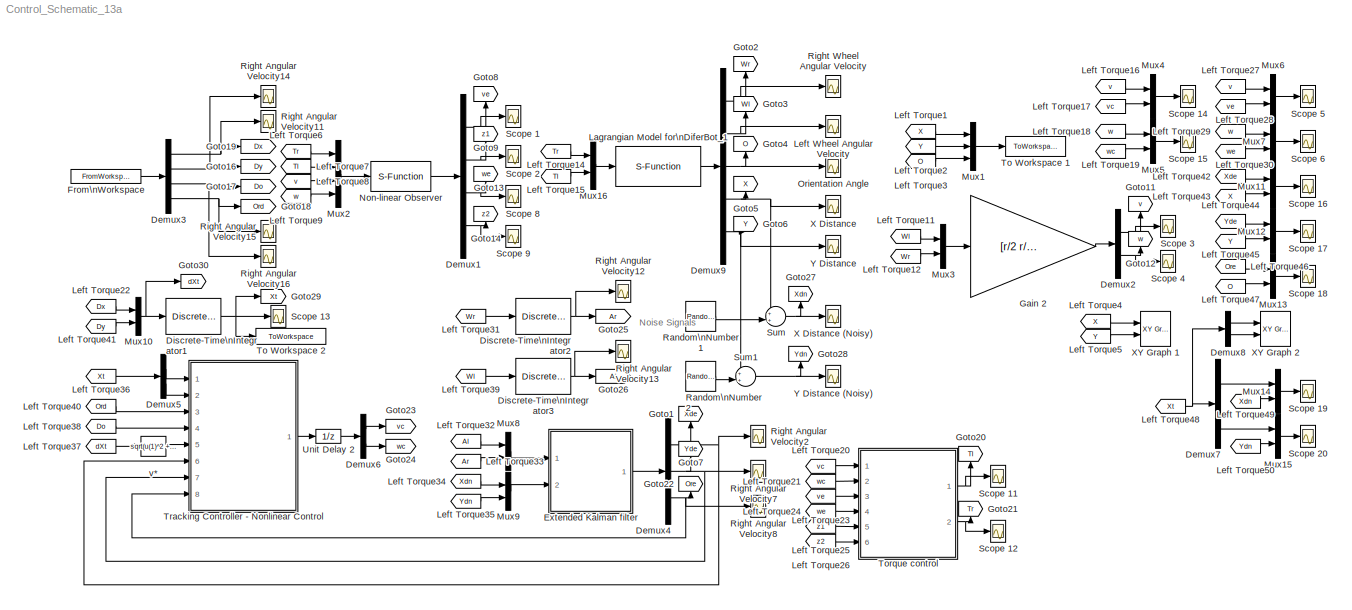
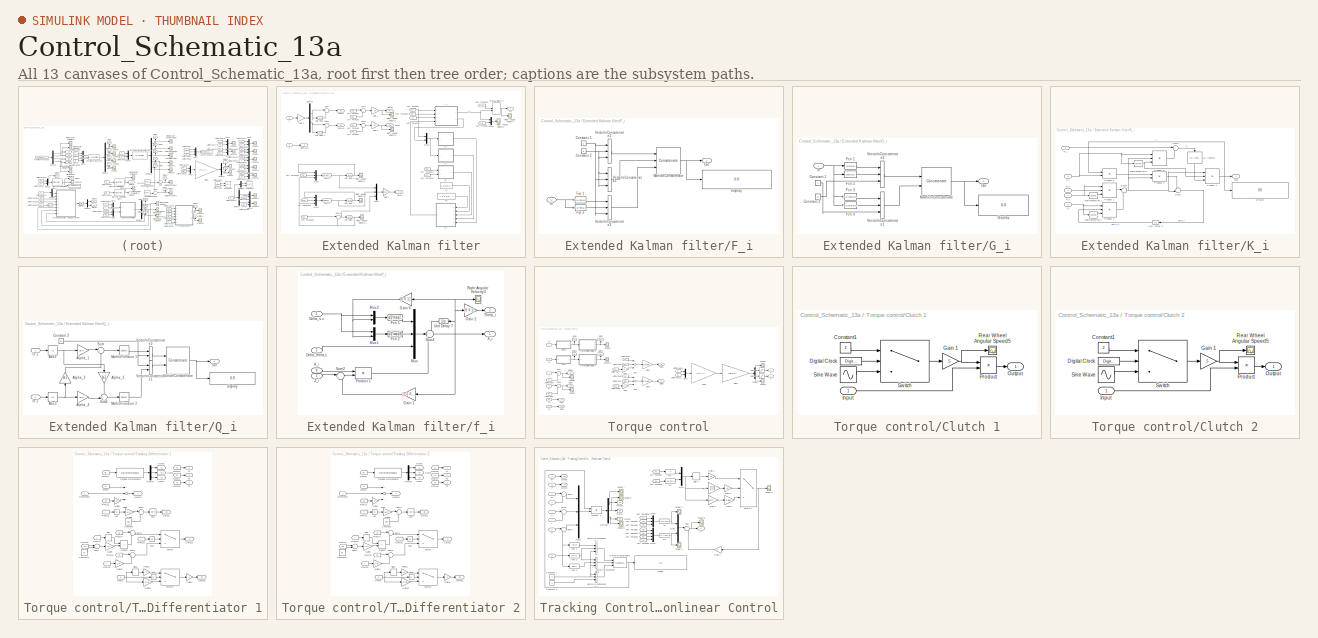
[diagram: thumbnail index - all 13 canvases of the model, root first then tree order]
MODEL Control_Schematic_13a
KIND model
BLOCK [Demux] Demux1
  DisplayOption = bar
  Ports = [1, 4]
  SID = 5647
BLOCK [Demux] Demux2
  DisplayOption = bar
  Outputs = 2
  Ports = [1, 2]
  SID = 5445
BLOCK [Demux] Demux3
  DisplayOption = bar
  Ports = [1, 4]
  SID = 5733
BLOCK [Demux] Demux4
  DisplayOption = bar
  Outputs = 3
  Ports = [1, 3]
  SID = 6061
BLOCK [Demux] Demux5
  DisplayOption = bar
  Outputs = 2
  Ports = [1, 2]
  SID = 6062
BLOCK [Demux] Demux6
  DisplayOption = bar
  Outputs = 2
  Ports = [1, 2]
  SID = 6063
BLOCK [Demux] Demux7
  DisplayOption = bar
  Outputs = 2
  Ports = [1, 2]
  SID = 6525
BLOCK [Demux] Demux8
  DisplayOption = bar
  Outputs = 2
  Ports = [1, 2]
  SID = 6533
BLOCK [Demux] Demux9
  DisplayOption = bar
  Outputs = 5
  Ports = [1, 5]
  SID = 6537
BLOCK [DiscreteIntegrator] Discrete-Time\nIntegrator1
  ICPrevOutput = DiscIntNeverNeededParam
  ICPrevScaledInput = DiscIntNeverNeededParam
  InitialCondition = [x_0,y_0]'
  IntegratorMethod = Integration: Trapezoidal
  Ports = [1, 1]
  SID = 6414
  SampleTime = Ts
  gainval = 1
BLOCK [DiscreteIntegrator] Discrete-Time\nIntegrator2
  ICPrevOutput = DiscIntNeverNeededParam
  ICPrevScaledInput = DiscIntNeverNeededParam
  IntegratorMethod = Integration: Trapezoidal
  Ports = [1, 1]
  SID = 6064
  SampleTime = Ts
  gainval = 1
BLOCK [DiscreteIntegrator] Discrete-Time\nIntegrator3
  ICPrevOutput = DiscIntNeverNeededParam
  ICPrevScaledInput = DiscIntNeverNeededParam
  IntegratorMethod = Integration: Trapezoidal
  Ports = [1, 1]
  SID = 6065
  SampleTime = Ts
  gainval = 1
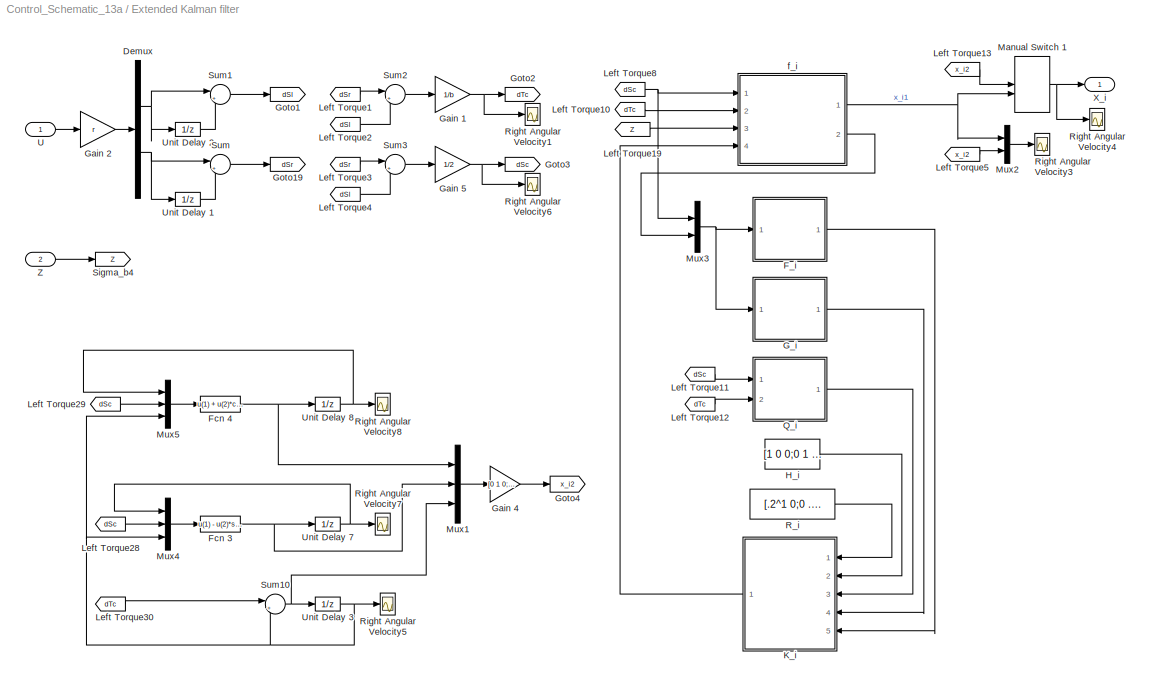
BLOCK [SubSystem] Extended Kalman filter
  Ports = [2, 1]
  RequestExecContextInheritance = off
  SID = 6066
BLOCK [Demux] Extended Kalman filter/Demux
  DisplayOption = bar
  Outputs = 2
  Ports = [1, 2]
  SID = 6069
BLOCK [SubSystem] Extended Kalman filter/F_i
  Ports = [1, 1]
  RequestExecContextInheritance = off
  SID = 6070
BLOCK [Constant] Extended Kalman filter/F_i/Constant 1
  SID = 6072
BLOCK [Constant] Extended Kalman filter/F_i/Constant 2
  SID = 6073
  Value = 0
BLOCK [Display] Extended Kalman filter/F_i/Display
  Decimation = 1
  Ports = [1]
  SID = 6074
BLOCK [Fcn] Extended Kalman filter/F_i/Fcn 1
  Expr = -u(1)*cos(u(2))
  SID = 6075
BLOCK [Fcn] Extended Kalman filter/F_i/Fcn 2
  Expr = -u(1)*sin(u(2))
  SID = 6076
BLOCK [Inport] Extended Kalman filter/F_i/In
  IconDisplay = Port number
  SID = 6071
BLOCK [Concatenate] Extended Kalman filter/F_i/Matrix\nConcatenate
  ConcatenateDimension = 2
  Mode = Multidimensional array
  NumInputs = 3
  Ports = [3, 1]
  SID = 6077
BLOCK [Outport] Extended Kalman filter/F_i/Out
  IconDisplay = Port number
  SID = 6081
BLOCK [Concatenate] Extended Kalman filter/F_i/Vector\nConcatenate1
  NumInputs = 3
  Ports = [3, 1]
  SID = 6078
BLOCK [Concatenate] Extended Kalman filter/F_i/Vector\nConcatenate2
  NumInputs = 3
  Ports = [3, 1]
  SID = 6079
BLOCK [Concatenate] Extended Kalman filter/F_i/Vector\nConcatenate3
  NumInputs = 3
  Ports = [3, 1]
  SID = 6080
BLOCK [Fcn] Extended Kalman filter/Fcn 3
  Expr = u(1) - u(2)*sin(u(3))
  SID = 6082
BLOCK [Fcn] Extended Kalman filter/Fcn 4
  Expr = u(1) + u(2)*cos(u(3))
  SID = 6083
BLOCK [SubSystem] Extended Kalman filter/G_i
  Ports = [1, 1]
  RequestExecContextInheritance = off
  SID = 6084
BLOCK [Constant] Extended Kalman filter/G_i/Constant 1
  SID = 6086
BLOCK [Constant] Extended Kalman filter/G_i/Constant 2
  SID = 6087
  Value = 0
BLOCK [Display] Extended Kalman filter/G_i/Display
  Decimation = 1
  Ports = [1]
  SID = 6088
BLOCK [Fcn] Extended Kalman filter/G_i/Fcn 1
  Expr = -sin(u(2))
  SID = 6089
BLOCK [Fcn] Extended Kalman filter/G_i/Fcn 2
  Expr = cos(u(2))
  SID = 6090
BLOCK [Fcn] Extended Kalman filter/G_i/Fcn 3
  Expr = -u(1)*cos(u(2))
  SID = 6091
BLOCK [Fcn] Extended Kalman filter/G_i/Fcn 4
  Expr = -u(1)*sin(u(2))
  SID = 6092
BLOCK [Inport] Extended Kalman filter/G_i/In
  IconDisplay = Port number
  SID = 6085
BLOCK [Concatenate] Extended Kalman filter/G_i/Matrix\nConcatenate
  ConcatenateDimension = 2
  Mode = Multidimensional array
  Ports = [2, 1]
  SID = 6093
BLOCK [Outport] Extended Kalman filter/G_i/Out
  IconDisplay = Port number
  SID = 6096
BLOCK [Concatenate] Extended Kalman filter/G_i/Vector\nConcatenate1
  NumInputs = 3
  Ports = [3, 1]
  SID = 6094
BLOCK [Concatenate] Extended Kalman filter/G_i/Vector\nConcatenate3
  NumInputs = 3
  Ports = [3, 1]
  SID = 6095
BLOCK [Gain] Extended Kalman filter/Gain 1
  Gain = 1/b
  OutDataTypeStr = Inherit: Inherit via internal rule
  ParamDataTypeStr = Inherit: Inherit via internal rule
  SID = 6097
  SaturateOnIntegerOverflow = off
BLOCK [Gain] Extended Kalman filter/Gain 2
  Gain = r
  OutDataTypeStr = Inherit: Inherit via internal rule
  ParamDataTypeStr = Inherit: Inherit via internal rule
  SID = 6098
  SaturateOnIntegerOverflow = off
BLOCK [Gain] Extended Kalman filter/Gain 4
  Gain = [0 1 0;1 0 0;0 0 1]
  Multiplication = Matrix(K*u)
  OutDataTypeStr = Inherit: Inherit via internal rule
  ParamDataTypeStr = Inherit: Inherit via internal rule
  SID = 6099
  SaturateOnIntegerOverflow = off
BLOCK [Gain] Extended Kalman filter/Gain 5
  Gain = 1/2
  OutDataTypeStr = Inherit: Inherit via internal rule
  ParamDataTypeStr = Inherit: Inherit via internal rule
  SID = 6100
  SaturateOnIntegerOverflow = off
BLOCK [Goto] Extended Kalman filter/Goto1
  GotoTag = dSl
  SID = 6101
BLOCK [Goto] Extended Kalman filter/Goto19
  GotoTag = dSr
  SID = 6102
BLOCK [Goto] Extended Kalman filter/Goto2
  GotoTag = dTc
  SID = 6103
BLOCK [Goto] Extended Kalman filter/Goto3
  GotoTag = dSc
  SID = 6104
BLOCK [Goto] Extended Kalman filter/Goto4
  GotoTag = x_i2
  SID = 6105
BLOCK [Constant] Extended Kalman filter/H_i
  SID = 6106
  Value = [1 0 0;0 1 0]
BLOCK [SubSystem] Extended Kalman filter/K_i
  Ports = [5, 1]
  RequestExecContextInheritance = off
  SID = 6107
BLOCK [Reference] Extended Kalman filter/K_i/ LU Inverse  REF=dspinverses/ LU Inverse
  Ports = [1, 1]
  SID = 6113
  SourceBlock = dspinverses/ LU Inverse
  SourceType = LU Inverse
BLOCK [Display] Extended Kalman filter/K_i/Display
  Decimation = 1
  Ports = [1]
  SID = 6114
BLOCK [Inport] Extended Kalman filter/K_i/F_i
  IconDisplay = Port number
  Port = 5
  SID = 6112
BLOCK [Inport] Extended Kalman filter/K_i/G_i
  IconDisplay = Port number
  Port = 4
  SID = 6111
BLOCK [Inport] Extended Kalman filter/K_i/H_i
  IconDisplay = Port number
  Port = 2
  SID = 6109
BLOCK [Math] Extended Kalman filter/K_i/Math\nFunction 1
  Operator = transpose
  Ports = [1, 1]
  SID = 6115
BLOCK [Math] Extended Kalman filter/K_i/Math\nFunction 2
  Operator = transpose
  Ports = [1, 1]
  SID = 6116
BLOCK [Math] Extended Kalman filter/K_i/Math\nFunction 3
  Operator = transpose
  Ports = [1, 1]
  SID = 6117
BLOCK [Outport] Extended Kalman filter/K_i/Out
  IconDisplay = Port number
  SID = 6128
BLOCK [Product] Extended Kalman filter/K_i/Product 1
  InputSameDT = off
  Inputs = 3
  Multiplication = Matrix(*)
  OutDataTypeStr = Inherit: Inherit via internal rule
  Ports = [3, 1]
  RndMeth = Floor
  SID = 6118
  SaturateOnIntegerOverflow = off
BLOCK [Product] Extended Kalman filter/K_i/Product 2
  InputSameDT = off
  Inputs = 3
  Multiplication = Matrix(*)
  OutDataTypeStr = Inherit: Inherit via internal rule
  Ports = [3, 1]
  RndMeth = Floor
  SID = 6119
  SaturateOnIntegerOverflow = off
BLOCK [Product] Extended Kalman filter/K_i/Product 3
  InputSameDT = off
  Multiplication = Matrix(*)
  OutDataTypeStr = Inherit: Inherit via internal rule
  Ports = [2, 1]
  RndMeth = Floor
  SID = 6120
  SaturateOnIntegerOverflow = off
BLOCK [Product] Extended Kalman filter/K_i/Product 4
  InputSameDT = off
  Multiplication = Matrix(*)
  OutDataTypeStr = Inherit: Inherit via internal rule
  Ports = [2, 1]
  RndMeth = Floor
  SID = 6121
  SaturateOnIntegerOverflow = off
BLOCK [Product] Extended Kalman filter/K_i/Product 5
  InputSameDT = off
  Inputs = 3
  Multiplication = Matrix(*)
  OutDataTypeStr = Inherit: Inherit via internal rule
  Ports = [3, 1]
  RndMeth = Floor
  SID = 6122
  SaturateOnIntegerOverflow = off
BLOCK [Product] Extended Kalman filter/K_i/Product 7
  InputSameDT = off
  Inputs = 3
  Multiplication = Matrix(*)
  OutDataTypeStr = Inherit: Inherit via internal rule
  Ports = [3, 1]
  RndMeth = Floor
  SID = 6123
  SaturateOnIntegerOverflow = off
BLOCK [Inport] Extended Kalman filter/K_i/Q_i
  IconDisplay = Port number
  Port = 3
  SID = 6110
BLOCK [Inport] Extended Kalman filter/K_i/R_i
  IconDisplay = Port number
  SID = 6108
BLOCK [Sum] Extended Kalman filter/K_i/Sum1
  IconShape = round
  InputSameDT = off
  Inputs = -+|
  OutDataTypeStr = Inherit: Inherit via internal rule
  Ports = [2, 1]
  SID = 6124
  SaturateOnIntegerOverflow = off
BLOCK [Sum] Extended Kalman filter/K_i/Sum2
  IconShape = round
  InputSameDT = off
  Inputs = |++
  OutDataTypeStr = Inherit: Inherit via internal rule
  Ports = [2, 1]
  SID = 6125
  SaturateOnIntegerOverflow = off
BLOCK [Sum] Extended Kalman filter/K_i/Sum3
  IconShape = round
  InputSameDT = off
  Inputs = |++
  OutDataTypeStr = Inherit: Inherit via internal rule
  Ports = [2, 1]
  SID = 6126
  SaturateOnIntegerOverflow = off
BLOCK [UnitDelay] Extended Kalman filter/K_i/Unit Delay 4
  InitialCondition = [1 0 0;0 1 0;0 0 1]
  InputProcessing = Elements as channels (sample based)
  SID = 6127
  SampleTime = -1
BLOCK [From] Extended Kalman filter/Left Torque1
  GotoTag = dSr
  SID = 6129
BLOCK [From] Extended Kalman filter/Left Torque10
  GotoTag = dTc
  SID = 6130
BLOCK [From] Extended Kalman filter/Left Torque11
  GotoTag = dSc
  SID = 6131
BLOCK [From] Extended Kalman filter/Left Torque12
  GotoTag = dTc
  SID = 6132
BLOCK [From] Extended Kalman filter/Left Torque13
  GotoTag = x_i2
  SID = 6133
BLOCK [From] Extended Kalman filter/Left Torque19
  GotoTag = Z
  SID = 6134
BLOCK [From] Extended Kalman filter/Left Torque2
  GotoTag = dSl
  SID = 6135
BLOCK [From] Extended Kalman filter/Left Torque28
  GotoTag = dSc
  SID = 6136
BLOCK [From] Extended Kalman filter/Left Torque29
  GotoTag = dSc
  SID = 6137
BLOCK [From] Extended Kalman filter/Left Torque3
  GotoTag = dSr
  SID = 6138
BLOCK [From] Extended Kalman filter/Left Torque30
  GotoTag = dTc
  SID = 6139
BLOCK [From] Extended Kalman filter/Left Torque4
  GotoTag = dSl
  SID = 6140
BLOCK [From] Extended Kalman filter/Left Torque5
  GotoTag = x_i2
  SID = 6141
BLOCK [From] Extended Kalman filter/Left Torque8
  GotoTag = dSc
  SID = 6142
BLOCK [ManualSwitch] Extended Kalman filter/Manual Switch 1
  CurrentSetting = 0
  SID = 6143
BLOCK [Mux] Extended Kalman filter/Mux1
  DisplayOption = bar
  Inputs = 3
  Ports = [3, 1]
  SID = 6144
BLOCK [Mux] Extended Kalman filter/Mux2
  DisplayOption = bar
  Inputs = 2
  Ports = [2, 1]
  SID = 6145
BLOCK [Mux] Extended Kalman filter/Mux3
  DisplayOption = bar
  Inputs = 2
  Ports = [2, 1]
  SID = 6146
BLOCK [Mux] Extended Kalman filter/Mux4
  DisplayOption = bar
  Inputs = 3
  Ports = [3, 1]
  SID = 6147
BLOCK [Mux] Extended Kalman filter/Mux5
  DisplayOption = bar
  Inputs = 3
  Ports = [3, 1]
  SID = 6148
BLOCK [SubSystem] Extended Kalman filter/Q_i
  Ports = [2, 1]
  RequestExecContextInheritance = off
  SID = 6149
BLOCK [Abs] Extended Kalman filter/Q_i/Abs 2
  SID = 6152
  SaturateOnIntegerOverflow = off
BLOCK [Abs] Extended Kalman filter/Q_i/Abs 3
  SID = 6153
  SaturateOnIntegerOverflow = off
BLOCK [Gain] Extended Kalman filter/Q_i/Alpha_1
  Gain = 2e-3
  OutDataTypeStr = Inherit: Inherit via internal rule
  ParamDataTypeStr = Inherit: Inherit via internal rule
  SID = 6154
  SaturateOnIntegerOverflow = off
BLOCK [Gain] Extended Kalman filter/Q_i/Alpha_2
  Gain = 1e-2
  OutDataTypeStr = Inherit: Inherit via internal rule
  ParamDataTypeStr = Inherit: Inherit via internal rule
  SID = 6155
  SaturateOnIntegerOverflow = off
BLOCK [Gain] Extended Kalman filter/Q_i/Alpha_3
  Gain = 1e-2
  OutDataTypeStr = Inherit: Inherit via internal rule
  ParamDataTypeStr = Inherit: Inherit via internal rule
  SID = 6156
  SaturateOnIntegerOverflow = off
BLOCK [Gain] Extended Kalman filter/Q_i/Alpha_4
  Gain = 1e-3
  OutDataTypeStr = Inherit: Inherit via internal rule
  ParamDataTypeStr = Inherit: Inherit via internal rule
  SID = 6157
  SaturateOnIntegerOverflow = off
BLOCK [Constant] Extended Kalman filter/Q_i/Constant 2
  SID = 6158
  Value = 0
BLOCK [Display] Extended Kalman filter/Q_i/Display
  Decimation = 1
  Ports = [1]
  SID = 6159
BLOCK [Inport] Extended Kalman filter/Q_i/In 1
  IconDisplay = Port number
  SID = 6150
BLOCK [Inport] Extended Kalman filter/Q_i/In 2
  IconDisplay = Port number
  Port = 2
  SID = 6151
BLOCK [Math] Extended Kalman filter/Q_i/Math\nFunction 1
  Operator = square
  Ports = [1, 1]
  SID = 6160
BLOCK [Math] Extended Kalman filter/Q_i/Math\nFunction 2
  Operator = square
  Ports = [1, 1]
  SID = 6161
BLOCK [Concatenate] Extended Kalman filter/Q_i/Matrix\nConcatenate
  ConcatenateDimension = 2
  Mode = Multidimensional array
  Ports = [2, 1]
  SID = 6162
BLOCK [Outport] Extended Kalman filter/Q_i/Out
  IconDisplay = Port number
  SID = 6167
BLOCK [Sum] Extended Kalman filter/Q_i/Sum
  IconShape = round
  InputSameDT = off
  Inputs = |++
  OutDataTypeStr = Inherit: Inherit via internal rule
  Ports = [2, 1]
  SID = 6163
  SaturateOnIntegerOverflow = off
BLOCK [Sum] Extended Kalman filter/Q_i/Sum1
  IconShape = round
  InputSameDT = off
  Inputs = ++|
  OutDataTypeStr = Inherit: Inherit via internal rule
  Ports = [2, 1]
  SID = 6164
  SaturateOnIntegerOverflow = off
BLOCK [Concatenate] Extended Kalman filter/Q_i/Vector\nConcatenate1
  Ports = [2, 1]
  SID = 6165
BLOCK [Concatenate] Extended Kalman filter/Q_i/Vector\nConcatenate3
  Ports = [2, 1]
  SID = 6166
BLOCK [Constant] Extended Kalman filter/R_i
  SID = 6168
  Value = [.2^1 0;0 .2^1]
BLOCK [Scope] Extended Kalman filter/Right Angular Velocity1
  Floating = off
  LimitDataPoints = off
  NumInputPorts = 1
  Ports = [1]
  SID = 6169
  SaveName = ScopeData23
  ShowLegends = off
  YMax = 1
  YMin = -1
  ZoomMode = xonly
BLOCK [Scope] Extended Kalman filter/Right Angular Velocity3
  Floating = off
  LimitDataPoints = off
  NumInputPorts = 1
  Ports = [1]
  SID = 6170
  SaveName = ScopeData29
  ShowLegends = off
  YMax = 2
  YMin = -1
  ZoomMode = yonly
BLOCK [Scope] Extended Kalman filter/Right Angular Velocity4
  Floating = off
  LimitDataPoints = off
  NumInputPorts = 1
  Ports = [1]
  SID = 6171
  SaveName = ScopeData31
  ShowLegends = off
  YMax = 1
  YMin = -1
  ZoomMode = yonly
BLOCK [Scope] Extended Kalman filter/Right Angular Velocity5
  Floating = off
  LimitDataPoints = off
  NumInputPorts = 1
  Ports = [1]
  SID = 6172
  SaveName = ScopeData32
  ShowLegends = off
  YMax = 3
  YMin = -1
  ZoomMode = yonly
BLOCK [Scope] Extended Kalman filter/Right Angular Velocity6
  Floating = off
  LimitDataPoints = off
  NumInputPorts = 1
  Ports = [1]
  SID = 6173
  SaveName = ScopeData22
  ShowLegends = off
  YMax = 1
  YMin = -1
  ZoomMode = xonly
BLOCK [Scope] Extended Kalman filter/Right Angular Velocity7
  Floating = off
  LimitDataPoints = off
  NumInputPorts = 1
  Ports = [1]
  SID = 6174
  SaveName = ScopeData33
  ShowLegends = off
  YMax = 2510
  YMin = 2490
  ZoomMode = yonly
BLOCK [Scope] Extended Kalman filter/Right Angular Velocity8
  Floating = off
  LimitDataPoints = off
  NumInputPorts = 1
  Ports = [1]
  SID = 6175
  SaveName = ScopeData34
  ShowLegends = off
  YMax = 500
  YMin = 100
BLOCK [Goto] Extended Kalman filter/Sigma_b4
  GotoTag = Z
  SID = 6176
BLOCK [Sum] Extended Kalman filter/Sum
  IconShape = round
  InputSameDT = off
  Inputs = |+-
  OutDataTypeStr = Inherit: Inherit via internal rule
  Ports = [2, 1]
  SID = 6177
  SaturateOnIntegerOverflow = off
BLOCK [Sum] Extended Kalman filter/Sum1
  IconShape = round
  InputSameDT = off
  Inputs = |+-
  OutDataTypeStr = Inherit: Inherit via internal rule
  Ports = [2, 1]
  SID = 6178
  SaturateOnIntegerOverflow = off
BLOCK [Sum] Extended Kalman filter/Sum10
  IconShape = round
  InputSameDT = off
  Inputs = |++
  OutDataTypeStr = Inherit: Inherit via internal rule
  Ports = [2, 1]
  SID = 6179
  SaturateOnIntegerOverflow = off
BLOCK [Sum] Extended Kalman filter/Sum2
  IconShape = round
  InputSameDT = off
  Inputs = |+-
  OutDataTypeStr = Inherit: Inherit via internal rule
  Ports = [2, 1]
  SID = 6180
  SaturateOnIntegerOverflow = off
BLOCK [Sum] Extended Kalman filter/Sum3
  IconShape = round
  InputSameDT = off
  Inputs = |++
  OutDataTypeStr = Inherit: Inherit via internal rule
  Ports = [2, 1]
  SID = 6181
  SaturateOnIntegerOverflow = off
BLOCK [Inport] Extended Kalman filter/U
  IconDisplay = Port number
  SID = 6067
BLOCK [UnitDelay] Extended Kalman filter/Unit Delay 1
  InputProcessing = Elements as channels (sample based)
  SID = 6182
  SampleTime = -1
BLOCK [UnitDelay] Extended Kalman filter/Unit Delay 2
  InputProcessing = Elements as channels (sample based)
  SID = 6183
  SampleTime = -1
BLOCK [UnitDelay] Extended Kalman filter/Unit Delay 3
  InputProcessing = Elements as channels (sample based)
  SID = 6184
  SampleTime = -1
BLOCK [UnitDelay] Extended Kalman filter/Unit Delay 7
  InitialCondition = 2500
  InputProcessing = Elements as channels (sample based)
  SID = 6185
  SampleTime = -1
BLOCK [UnitDelay] Extended Kalman filter/Unit Delay 8
  InitialCondition = 200
  InputProcessing = Elements as channels (sample based)
  SID = 6186
  SampleTime = -1
BLOCK [Outport] Extended Kalman filter/X_i
  IconDisplay = Port number
  SID = 6207
BLOCK [Inport] Extended Kalman filter/Z
  IconDisplay = Port number
  Port = 2
  SID = 6068
BLOCK [SubSystem] Extended Kalman filter/f_i
  Ports = [4, 2]
  RequestExecContextInheritance = off
  SID = 6187
BLOCK [Inport] Extended Kalman filter/f_i/Delta_s,c
  IconDisplay = Port number
  SID = 6188
BLOCK [Inport] Extended Kalman filter/f_i/Delta_theta,c
  IconDisplay = Port number
  Port = 2
  SID = 6189
BLOCK [Fcn] Extended Kalman filter/f_i/Fcn 1
  Expr = -u(1)*sin(u(2))
  SID = 6192
BLOCK [Fcn] Extended Kalman filter/f_i/Fcn 2
  Expr = u(1)*cos(u(2))
  SID = 6193
BLOCK [Gain] Extended Kalman filter/f_i/Gain 1
  Gain = [1 0 0;0 1 0]
  Multiplication = Matrix(K*u)
  OutDataTypeStr = Inherit: Inherit via internal rule
  ParamDataTypeStr = Inherit: Inherit via internal rule
  SID = 6194
  SaturateOnIntegerOverflow = off
BLOCK [Gain] Extended Kalman filter/f_i/Gain 2
  Gain = [0 0 1]
  Multiplication = Matrix(K*u)
  OutDataTypeStr = Inherit: Inherit via internal rule
  ParamDataTypeStr = Inherit: Inherit via internal rule
  SID = 6195
  SaturateOnIntegerOverflow = off
BLOCK [Gain] Extended Kalman filter/f_i/Gain 6
  Gain = [0 0 1]
  Multiplication = Matrix(K*u)
  OutDataTypeStr = Inherit: Inherit via internal rule
  ParamDataTypeStr = Inherit: Inherit via internal rule
  SID = 6196
  SaturateOnIntegerOverflow = off
BLOCK [Inport] Extended Kalman filter/f_i/K_i
  IconDisplay = Port number
  Port = 4
  SID = 6191
BLOCK [Mux] Extended Kalman filter/f_i/Mux
  DisplayOption = bar
  Inputs = 3
  Ports = [3, 1]
  SID = 6197
BLOCK [Mux] Extended Kalman filter/f_i/Mux1
  DisplayOption = bar
  Inputs = 2
  Ports = [2, 1]
  SID = 6198
BLOCK [Mux] Extended Kalman filter/f_i/Mux2
  DisplayOption = bar
  Inputs = 2
  Ports = [2, 1]
  SID = 6199
BLOCK [Product] Extended Kalman filter/f_i/Product 1
  InputSameDT = off
  Multiplication = Matrix(*)
  OutDataTypeStr = Inherit: Inherit via internal rule
  Ports = [2, 1]
  RndMeth = Floor
  SID = 6200
  SaturateOnIntegerOverflow = off
BLOCK [Scope] Extended Kalman filter/f_i/Right Angular Velocity3
  Floating = off
  LimitDataPoints = off
  NumInputPorts = 1
  Ports = [1]
  SID = 6201
  SaveName = ScopeData30
  ShowLegends = off
  YMax = 1
  YMin = -1
  ZoomMode = yonly
BLOCK [Sum] Extended Kalman filter/f_i/Sum2
  IconShape = round
  InputSameDT = off
  Inputs = |+-
  OutDataTypeStr = Inherit: Inherit via internal rule
  Ports = [2, 1]
  SID = 6202
  SaturateOnIntegerOverflow = off
BLOCK [Sum] Extended Kalman filter/f_i/Sum4
  IconShape = round
  InputSameDT = off
  Inputs = +++
  OutDataTypeStr = Inherit: Inherit via internal rule
  Ports = [3, 1]
  SID = 6203
  SaturateOnIntegerOverflow = off
BLOCK [Outport] Extended Kalman filter/f_i/Theta_i
  IconDisplay = Port number
  Port = 2
  SID = 6206
BLOCK [UnitDelay] Extended Kalman filter/f_i/Unit Delay 7
  InitialCondition = [2500 200 0]'
  InputProcessing = Elements as channels (sample based)
  SID = 6204
  SampleTime = -1
BLOCK [Outport] Extended Kalman filter/f_i/X_i
  IconDisplay = Port number
  SID = 6205
BLOCK [Inport] Extended Kalman filter/f_i/Z_i
  IconDisplay = Port number
  Port = 3
  SID = 6190
BLOCK [FromWorkspace] From\nWorkspace
  OutputAfterFinalValue = Holding final value
  SID = 5734
  SampleTime = Ts
  VariableName = desired_path
  ZeroCross = on
BLOCK [Gain] Gain 2
  Gain = [r/2 r/2;-r/b r/b]
  Multiplication = Matrix(K*u)
  OutDataTypeStr = Inherit: Inherit via internal rule
  ParamDataTypeStr = Inherit: Inherit via internal rule
  SID = 5444
  SaturateOnIntegerOverflow = off
BLOCK [Goto] Goto1
  GotoTag = Xde
  SID = 6208
  TagVisibility = global
BLOCK [Goto] Goto11
  GotoTag = v
  SID = 5448
  TagVisibility = global
BLOCK [Goto] Goto12
  GotoTag = w
  SID = 5449
  TagVisibility = global
BLOCK [Goto] Goto13
  GotoTag = we
  SID = 5653
  TagVisibility = global
BLOCK [Goto] Goto14
  GotoTag = z2
  SID = 5656
  TagVisibility = global
BLOCK [Goto] Goto16
  GotoTag = Dy
  SID = 5735
  TagVisibility = global
BLOCK [Goto] Goto17
  GotoTag = Do
  SID = 5736
  TagVisibility = global
BLOCK [Goto] Goto18
  GotoTag = Ord
  SID = 5737
  TagVisibility = global
BLOCK [Goto] Goto19
  GotoTag = Dx
  SID = 5738
  TagVisibility = global
BLOCK [Goto] Goto2
  GotoTag = Wr
  SID = 30
  TagVisibility = global
BLOCK [Goto] Goto20
  GotoTag = Tl
  SID = 5804
  TagVisibility = global
BLOCK [Goto] Goto21
  GotoTag = Tr
  SID = 5805
  TagVisibility = global
BLOCK [Goto] Goto22
  GotoTag = Ore
  SID = 6210
  TagVisibility = global
BLOCK [Goto] Goto23
  GotoTag = vc
  SID = 6211
  TagVisibility = global
BLOCK [Goto] Goto24
  GotoTag = wc
  SID = 6212
  TagVisibility = global
BLOCK [Goto] Goto25
  GotoTag = Ar
  SID = 6213
  TagVisibility = global
BLOCK [Goto] Goto26
  GotoTag = Al
  SID = 6214
  TagVisibility = global
BLOCK [Goto] Goto27
  GotoTag = Xdn
  SID = 6405
  TagVisibility = global
BLOCK [Goto] Goto28
  GotoTag = Ydn
  SID = 6406
  TagVisibility = global
BLOCK [Goto] Goto29
  GotoTag = Xt
  SID = 6415
  TagVisibility = global
BLOCK [Goto] Goto3
  GotoTag = Wl
  SID = 31
  TagVisibility = global
BLOCK [Goto] Goto30
  GotoTag = dXt
  SID = 6416
  TagVisibility = global
BLOCK [Goto] Goto4
  GotoTag = O
  SID = 32
  TagVisibility = global
BLOCK [Goto] Goto5
  GotoTag = X
  SID = 33
  TagVisibility = global
BLOCK [Goto] Goto6
  GotoTag = Y
  SID = 34
  TagVisibility = global
BLOCK [Goto] Goto7
  GotoTag = Yde
  SID = 6209
  TagVisibility = global
BLOCK [Goto] Goto8
  GotoTag = ve
  SID = 5648
  TagVisibility = global
BLOCK [Goto] Goto9
  GotoTag = z1
  SID = 5649
  TagVisibility = global
BLOCK [S-Function] Lagrangian Model for\nDiferBot_1
  EnableBusSupport = off
  FunctionName = DiferBotDyn_1
  Parameters = par
  Ports = [1, 1]
  SID = 6544
BLOCK [From] Left Torque1
  GotoTag = X
  SID = 5391
  TagVisibility = global
BLOCK [From] Left Torque11
  GotoTag = Wl
  SID = 5441
  TagVisibility = global
BLOCK [From] Left Torque12
  GotoTag = Wr
  SID = 5442
  TagVisibility = global
BLOCK [From] Left Torque14
  GotoTag = Tr
  SID = 5808
  TagVisibility = global
BLOCK [From] Left Torque15
  GotoTag = Tl
  SID = 5809
  TagVisibility = global
BLOCK [From] Left Torque16
  GotoTag = v
  SID = 5726
  TagVisibility = global
BLOCK [From] Left Torque17
  GotoTag = vc
  SID = 5727
  TagVisibility = global
BLOCK [From] Left Torque18
  GotoTag = w
  SID = 5729
  TagVisibility = global
BLOCK [From] Left Torque19
  GotoTag = wc
  SID = 5730
  TagVisibility = global
BLOCK [From] Left Torque2
  GotoTag = Y
  SID = 5392
  TagVisibility = global
BLOCK [From] Left Torque20
  GotoTag = vc
  SID = 5743
  TagVisibility = global
BLOCK [From] Left Torque21
  GotoTag = wc
  SID = 5744
  TagVisibility = global
BLOCK [From] Left Torque22
  GotoTag = Dx
  SID = 6417
  TagVisibility = global
BLOCK [From] Left Torque23
  GotoTag = ve
  SID = 5764
  TagVisibility = global
BLOCK [From] Left Torque24
  GotoTag = we
  SID = 5765
  TagVisibility = global
BLOCK [From] Left Torque25
  GotoTag = z1
  SID = 5775
  TagVisibility = global
BLOCK [From] Left Torque26
  GotoTag = z2
  SID = 5776
  TagVisibility = global
BLOCK [From] Left Torque27
  GotoTag = v
  SID = 5815
  TagVisibility = global
BLOCK [From] Left Torque28
  GotoTag = ve
  SID = 5816
  TagVisibility = global
BLOCK [From] Left Torque29
  GotoTag = w
  SID = 5819
  TagVisibility = global
BLOCK [From] Left Torque3
  GotoTag = O
  SID = 5393
  TagVisibility = global
BLOCK [From] Left Torque30
  GotoTag = we
  SID = 5820
  TagVisibility = global
BLOCK [From] Left Torque31
  GotoTag = Wr
  SID = 6215
  TagVisibility = global
BLOCK [From] Left Torque32
  GotoTag = Al
  SID = 6216
  TagVisibility = global
BLOCK [From] Left Torque33
  GotoTag = Ar
  SID = 6217
  TagVisibility = global
BLOCK [From] Left Torque34
  GotoTag = Xdn
  SID = 6218
  TagVisibility = global
BLOCK [From] Left Torque35
  GotoTag = Ydn
  SID = 6219
  TagVisibility = global
BLOCK [From] Left Torque36
  GotoTag = Xt
  SID = 6220
  TagVisibility = global
BLOCK [From] Left Torque37
  GotoTag = dXt
  SID = 6221
  TagVisibility = global
BLOCK [From] Left Torque38
  GotoTag = Do
  SID = 6222
  TagVisibility = global
BLOCK [From] Left Torque39
  GotoTag = Wl
  SID = 6223
  TagVisibility = global
BLOCK [From] Left Torque4
  GotoTag = X
  SID = 5417
  TagVisibility = global
BLOCK [From] Left Torque40
  GotoTag = Ord
  SID = 6224
  TagVisibility = global
BLOCK [From] Left Torque41
  GotoTag = Dy
  SID = 6418
  TagVisibility = global
BLOCK [From] Left Torque42
  GotoTag = Xde
  SID = 6461
  TagVisibility = global
BLOCK [From] Left Torque43
  GotoTag = X
  SID = 6462
  TagVisibility = global
BLOCK [From] Left Torque44
  GotoTag = Yde
  SID = 6463
  TagVisibility = global
BLOCK [From] Left Torque45
  GotoTag = Y
  SID = 6464
  TagVisibility = global
BLOCK [From] Left Torque46
  GotoTag = Ore
  SID = 6469
  TagVisibility = global
BLOCK [From] Left Torque47
  GotoTag = O
  SID = 6470
  TagVisibility = global
BLOCK [From] Left Torque48
  GotoTag = Xt
  SID = 6524
  TagVisibility = global
BLOCK [From] Left Torque49
  GotoTag = Xdn
  SID = 6526
  TagVisibility = global
BLOCK [From] Left Torque5
  GotoTag = Y
  SID = 5418
  TagVisibility = global
BLOCK [From] Left Torque50
  GotoTag = Ydn
  SID = 6529
  TagVisibility = global
BLOCK [From] Left Torque6
  GotoTag = Tr
  SID = 5643
  TagVisibility = global
BLOCK [From] Left Torque7
  GotoTag = Tl
  SID = 5644
  TagVisibility = global
BLOCK [From] Left Torque8
  GotoTag = v
  SID = 5645
  TagVisibility = global
BLOCK [From] Left Torque9
  GotoTag = w
  SID = 5646
  TagVisibility = global
BLOCK [Scope] Left Wheel Angular Velocity
  Floating = off
  LimitDataPoints = off
  NumInputPorts = 1
  Ports = [1]
  SID = 2
  SaveName = ScopeData2
  ShowLegends = off
  YMax = 1
  YMin = -1
BLOCK [Mux] Mux1
  DisplayOption = bar
  Inputs = 3
  Ports = [3, 1]
  SID = 5394
BLOCK [Mux] Mux10
  DisplayOption = bar
  Inputs = 2
  Ports = [2, 1]
  SID = 6420
BLOCK [Mux] Mux11
  DisplayOption = bar
  Inputs = 2
  Ports = [2, 1]
  SID = 6465
BLOCK [Mux] Mux12
  DisplayOption = bar
  Inputs = 2
  Ports = [2, 1]
  SID = 6466
BLOCK [Mux] Mux13
  DisplayOption = bar
  Inputs = 2
  Ports = [2, 1]
  SID = 6471
BLOCK [Mux] Mux14
  DisplayOption = bar
  Inputs = 2
  Ports = [2, 1]
  SID = 6527
BLOCK [Mux] Mux15
  DisplayOption = bar
  Inputs = 2
  Ports = [2, 1]
  SID = 6528
BLOCK [Mux] Mux16
  DisplayOption = bar
  Inputs = 2
  Ports = [2, 1]
  SID = 6548
BLOCK [Mux] Mux2
  DisplayOption = bar
  Ports = [4, 1]
  SID = 5642
BLOCK [Mux] Mux3
  DisplayOption = bar
  Inputs = 2
  Ports = [2, 1]
  SID = 5443
BLOCK [Mux] Mux4
  DisplayOption = bar
  Inputs = 2
  Ports = [2, 1]
  SID = 5725
BLOCK [Mux] Mux5
  DisplayOption = bar
  Inputs = 2
  Ports = [2, 1]
  SID = 5731
BLOCK [Mux] Mux6
  DisplayOption = bar
  Inputs = 2
  Ports = [2, 1]
  SID = 5817
BLOCK [Mux] Mux7
  DisplayOption = bar
  Inputs = 2
  Ports = [2, 1]
  SID = 5821
BLOCK [Mux] Mux8
  DisplayOption = bar
  Inputs = 2
  Ports = [2, 1]
  SID = 6225
BLOCK [Mux] Mux9
  DisplayOption = bar
  Inputs = 2
  Ports = [2, 1]
  SID = 6226
BLOCK [S-Function] Non-linear Observer
  EnableBusSupport = off
  FunctionName = observer1
  Parameters = par
  Ports = [1, 1]
  SID = 5641
BLOCK [Scope] Orientation Angle
  Floating = off
  LimitDataPoints = off
  NumInputPorts = 1
  Ports = [1]
  SID = 1
  SaveName = ScopeData1
  ShowLegends = off
  YMax = 3
  YMin = -3
BLOCK [RandomNumber] Random\nNumber 1
  SID = 6407
  SampleTime = Ts
  Seed = 6
  Variance = .5
BLOCK [RandomNumber] Random\nNumber 2
  SID = 6408
  SampleTime = Ts
  Seed = 8
  Variance = .5
BLOCK [Scope] Right Angular Velocity11
  Floating = off
  LimitDataPoints = off
  NumInputPorts = 1
  Ports = [1]
  SID = 5739
  SaveName = ScopeData17
  ShowLegends = off
  YMax = 4500
  YMin = 0
  ZoomMode = xonly
BLOCK [Scope] Right Angular Velocity12
  Floating = off
  LimitDataPoints = off
  NumInputPorts = 1
  Ports = [1]
  SID = 6227
  SaveName = ScopeData39
  ShowLegends = off
  YMax = 30
  YMin = -3
BLOCK [Scope] Right Angular Velocity13
  Floating = off
  LimitDataPoints = off
  NumInputPorts = 1
  Ports = [1]
  SID = 6228
  SaveName = ScopeData40
  ShowLegends = off
  YMax = 3
  YMin = -3
BLOCK [Scope] Right Angular Velocity14
  Floating = off
  LimitDataPoints = off
  NumInputPorts = 1
  Ports = [1]
  SID = 5740
  SaveName = ScopeData20
  ShowLegends = off
  TimeRange = 500
  YMax = 4500
  YMin = 0
  ZoomMode = xonly
BLOCK [Scope] Right Angular Velocity15
  Floating = off
  LimitDataPoints = off
  NumInputPorts = 1
  Ports = [1]
  SID = 5741
  SaveName = ScopeData15
  ShowLegends = off
  YMax = 3.141592653589793
  YMin = -3.141592653589793
  ZoomMode = xonly
BLOCK [Scope] Right Angular Velocity16
  Floating = off
  LimitDataPoints = off
  NumInputPorts = 1
  Ports = [1]
  SID = 5742
  SaveName = ScopeData16
  ShowLegends = off
  YMax = -0.1
  YMin = -0.1
  ZoomMode = xonly
BLOCK [Scope] Right Angular Velocity2
  Floating = off
  LimitDataPoints = off
  NumInputPorts = 1
  Ports = [1]
  SID = 6229
  SaveName = ScopeData35
  ShowLegends = off
  YMax = 2600
  YMin = 2400
  ZoomMode = xonly
BLOCK [Scope] Right Angular Velocity7
  Floating = off
  LimitDataPoints = off
  NumInputPorts = 1
  Ports = [1]
  SID = 6230
  SaveName = ScopeData36
  ShowLegends = off
  YMax = 5000
  YMin = 0
BLOCK [Scope] Right Angular Velocity8
  Floating = off
  LimitDataPoints = off
  NumInputPorts = 1
  Ports = [1]
  SID = 6231
  SaveName = ScopeData37
  ShowLegends = off
  YMax = 3.141592653589793
  YMin = -3.141592653589793
BLOCK [Scope] Right Wheel Angular Velocity
  Floating = off
  LimitDataPoints = off
  NumInputPorts = 1
  Ports = [1]
  SID = 3
  SaveName = ScopeData3
  ShowLegends = off
  YMax = 20
  YMin = -1
  ZoomMode = yonly
BLOCK [Scope] Scope 1
  Floating = off
  LimitDataPoints = off
  NumInputPorts = 1
  Ports = [1]
  SID = 5650
  SaveName = ScopeData5
  ShowLegends = off
  YMax = 5000
  YMin = 0
  ZoomMode = yonly
BLOCK [Scope] Scope 11
  Floating = off
  LimitDataPoints = off
  NumInputPorts = 1
  Ports = [1]
  SID = 5806
  SaveName = ScopeData24
  ShowLegends = off
  YMax = 20
  YMin = -20
  ZoomMode = yonly
BLOCK [Scope] Scope 12
  Floating = off
  LimitDataPoints = off
  NumInputPorts = 1
  Ports = [1]
  SID = 5807
  SaveName = ScopeData25
  ShowLegends = off
  YMax = 15
  YMin = -15
  ZoomMode = yonly
BLOCK [Scope] Scope 13
  Floating = off
  LimitDataPoints = off
  NumInputPorts = 1
  Ports = [1]
  SID = 6421
  SaveName = ScopeData42
  ShowLegends = off
  YMax = 5000
  YMin = 100
  ZoomMode = yonly
BLOCK [Scope] Scope 14
  Floating = off
  LimitDataPoints = off
  NumInputPorts = 1
  Ports = [1]
  SID = 5728
  SaveName = ScopeData18
  ShowLegends = off
  YMax = 150
  YMin = -150
  ZoomMode = xonly
BLOCK [Scope] Scope 15
  Floating = off
  LimitDataPoints = off
  NumInputPorts = 1
  Ports = [1]
  SID = 5732
  SaveName = ScopeData19
  ShowLegends = off
  YMax = 2
  YMin = -2
  ZoomMode = yonly
BLOCK [Scope] Scope 16
  Floating = off
  LimitDataPoints = off
  NumInputPorts = 1
  Ports = [1]
  SID = 6467
  SaveName = ScopeData43
  ShowLegends = off
  YMax = 5000
  YMin = 0
BLOCK [Scope] Scope 17
  Floating = off
  LimitDataPoints = off
  NumInputPorts = 1
  Ports = [1]
  SID = 6468
  SaveName = ScopeData46
  ShowLegends = off
  YMax = 10000
  YMin = 0
BLOCK [Scope] Scope 18
  Floating = off
  LimitDataPoints = off
  NumInputPorts = 1
  Ports = [1]
  SID = 6472
  SaveName = ScopeData51
  ShowLegends = off
  YMax = 1.1
  YMin = -10
BLOCK [Scope] Scope 19
  Floating = off
  LimitDataPoints = off
  NumInputPorts = 1
  Ports = [1]
  SID = 6530
  SaveName = ScopeData52
  ShowLegends = off
  YMax = 5000
  YMin = 0
BLOCK [Scope] Scope 2
  Floating = off
  LimitDataPoints = off
  NumInputPorts = 1
  Ports = [1]
  SID = 5651
  SaveName = ScopeData6
  ShowLegends = off
  YMax = 200
  YMin = -100
  ZoomMode = yonly
BLOCK [Scope] Scope 20
  Floating = off
  LimitDataPoints = off
  NumInputPorts = 1
  Ports = [1]
  SID = 6531
  SaveName = ScopeData53
  ShowLegends = off
  YMax = 5000
  YMin = 0
BLOCK [Scope] Scope 3
  Floating = off
  LimitDataPoints = off
  NumInputPorts = 1
  Ports = [1]
  SID = 5594
  SaveName = ScopeData10
  ShowLegends = off
  YMax = 5000
  YMin = 0
  ZoomMode = yonly
BLOCK [Scope] Scope 4
  Floating = off
  LimitDataPoints = off
  NumInputPorts = 1
  Ports = [1]
  SID = 5595
  SaveName = ScopeData11
  ShowLegends = off
  YMax = 5000
  YMin = 0
  ZoomMode = yonly
BLOCK [Scope] Scope 5
  Floating = off
  LimitDataPoints = off
  NumInputPorts = 1
  Ports = [1]
  SID = 5818
  SaveName = ScopeData28
  ShowLegends = off
  YMax = 500
  YMin = -150
BLOCK [Scope] Scope 6
  Floating = off
  LimitDataPoints = off
  NumInputPorts = 1
  Ports = [1]
  SID = 5822
  SaveName = ScopeData29
  ShowLegends = off
BLOCK [Scope] Scope 8
  Floating = off
  LimitDataPoints = off
  NumInputPorts = 1
  Ports = [1]
  SID = 5655
  SaveName = ScopeData12
  ShowLegends = off
  YMax = 1
  YMin = -1
  ZoomMode = yonly
BLOCK [Scope] Scope 9
  Floating = off
  LimitDataPoints = off
  NumInputPorts = 1
  Ports = [1]
  SID = 5658
  SaveName = ScopeData14
  ShowLegends = off
  TimeRange = 388
  YMax = 6
  YMin = -6
  ZoomMode = yonly
BLOCK [Sum] Sum
  IconShape = round
  InputSameDT = off
  Inputs = ++|
  OutDataTypeStr = Inherit: Inherit via internal rule
  Ports = [2, 1]
  SID = 6409
  SaturateOnIntegerOverflow = off
BLOCK [Sum] Sum1
  IconShape = round
  InputSameDT = off
  Inputs = ++|
  OutDataTypeStr = Inherit: Inherit via internal rule
  Ports = [2, 1]
  SID = 6410
  SaturateOnIntegerOverflow = off
BLOCK [ToWorkspace] To Workspace 1
  FixptAsFi = on
  MaxDataPoints = inf
  Ports = [1]
  SID = 2059
  SampleTime = -1
  Save2DSignal = 3-D array (concatenate along third dimension)
  SaveFormat = Structure With Time
  VariableName = Output_1
BLOCK [ToWorkspace] To Workspace 2
  FixptAsFi = on
  MaxDataPoints = inf
  Ports = [1]
  SID = 6422
  SampleTime = -1
  Save2DSignal = 3-D array (concatenate along third dimension)
  SaveFormat = Structure With Time
  VariableName = Desired_pose
BLOCK [SubSystem] Torque control
  Ports = [6, 2]
  RequestExecContextInheritance = off
  SID = 5758
BLOCK [Sum] Torque control/Add 1
  InputSameDT = off
  Inputs = ++-
  OutDataTypeStr = Inherit: Inherit via internal rule
  Ports = [3, 1]
  SID = 5777
  SaturateOnIntegerOverflow = off
BLOCK [Sum] Torque control/Add 2
  InputSameDT = off
  Inputs = ++-
  OutDataTypeStr = Inherit: Inherit via internal rule
  Ports = [3, 1]
  SID = 5786
  SaturateOnIntegerOverflow = off
BLOCK [SubSystem] Torque control/Clutch 1
  Ports = [1, 1]
  RequestExecContextInheritance = off
  SID = 6441
BLOCK [Constant] Torque control/Clutch 1/Constant1
  SID = 6443
  Value = 2
BLOCK [DigitalClock] Torque control/Clutch 1/Digital Clock
  SID = 6444
  SampleTime = Ts
BLOCK [Gain] Torque control/Clutch 1/Gain 1
  Gain = .5
  OutDataTypeStr = Inherit: Inherit via internal rule
  ParamDataTypeStr = Inherit: Inherit via internal rule
  SID = 6445
  SaturateOnIntegerOverflow = off
BLOCK [Inport] Torque control/Clutch 1/Input
  IconDisplay = Port number
  SID = 6442
BLOCK [Outport] Torque control/Clutch 1/Output
  IconDisplay = Port number
  SID = 6450
BLOCK [Product] Torque control/Clutch 1/Product
  InputSameDT = off
  OutDataTypeStr = Inherit: Inherit via internal rule
  Ports = [2, 1]
  RndMeth = Floor
  SID = 6446
  SaturateOnIntegerOverflow = off
BLOCK [Scope] Torque control/Clutch 1/Rear Wheel Angular Speed5
  Floating = off
  LimitDataPoints = off
  NumInputPorts = 1
  Ports = [1]
  SID = 6447
  SaveName = ScopeData20
  ShowLegends = off
  YMax = 1
  YMin = 0
  ZoomMode = xonly
BLOCK [Sin] Torque control/Clutch 1/Sine Wave
  Bias = 1
  Frequency = (pi/12)
  Phase = -pi/2
  Ports = [0, 1]
  SID = 6448
  SampleTime = Ts
BLOCK [Switch] Torque control/Clutch 1/Switch
  InputSameDT = off
  SID = 6449
  SaturateOnIntegerOverflow = off
  Threshold = 12
BLOCK [SubSystem] Torque control/Clutch 2
  Ports = [1, 1]
  RequestExecContextInheritance = off
  SID = 6451
BLOCK [Constant] Torque control/Clutch 2/Constant1
  SID = 6453
  Value = 2
BLOCK [DigitalClock] Torque control/Clutch 2/Digital Clock
  SID = 6454
  SampleTime = Ts
BLOCK [Gain] Torque control/Clutch 2/Gain 1
  Gain = .5
  OutDataTypeStr = Inherit: Inherit via internal rule
  ParamDataTypeStr = Inherit: Inherit via internal rule
  SID = 6455
  SaturateOnIntegerOverflow = off
BLOCK [Inport] Torque control/Clutch 2/Input
  IconDisplay = Port number
  SID = 6452
BLOCK [Outport] Torque control/Clutch 2/Output
  IconDisplay = Port number
  SID = 6460
BLOCK [Product] Torque control/Clutch 2/Product
  InputSameDT = off
  OutDataTypeStr = Inherit: Inherit via internal rule
  Ports = [2, 1]
  RndMeth = Floor
  SID = 6456
  SaturateOnIntegerOverflow = off
BLOCK [Scope] Torque control/Clutch 2/Rear Wheel Angular Speed5
  Floating = off
  LimitDataPoints = off
  NumInputPorts = 1
  Ports = [1]
  SID = 6457
  SaveName = ScopeData20
  ShowLegends = off
  YMax = 1
  YMin = 0
  ZoomMode = xonly
BLOCK [Sin] Torque control/Clutch 2/Sine Wave
  Bias = 1
  Frequency = (pi/12)
  Phase = -pi/2
  Ports = [0, 1]
  SID = 6458
  SampleTime = Ts
BLOCK [Switch] Torque control/Clutch 2/Switch
  InputSameDT = off
  SID = 6459
  SaturateOnIntegerOverflow = off
  Threshold = 12
BLOCK [Demux] Torque control/Demux
  DisplayOption = bar
  Outputs = 2
  Ports = [1, 2]
  SID = 5797
BLOCK [Gain] Torque control/Gain 1
  Gain = 1/rho1
  OutDataTypeStr = Inherit: Inherit via internal rule
  ParamDataTypeStr = Inherit: Inherit via internal rule
  SID = 5780
  SaturateOnIntegerOverflow = off
BLOCK [Gain] Torque control/Gain 2
  Gain = k1
  OutDataTypeStr = Inherit: Inherit via internal rule
  ParamDataTypeStr = Inherit: Inherit via internal rule
  SID = 5785
  SaturateOnIntegerOverflow = off
BLOCK [Gain] Torque control/Gain 3
  Gain = 1/rho2
  OutDataTypeStr = Inherit: Inherit via internal rule
  ParamDataTypeStr = Inherit: Inherit via internal rule
  SID = 5787
  SaturateOnIntegerOverflow = off
BLOCK [Gain] Torque control/Gain 4
  Gain = k2
  OutDataTypeStr = Inherit: Inherit via internal rule
  ParamDataTypeStr = Inherit: Inherit via internal rule
  SID = 5788
  SaturateOnIntegerOverflow = off
BLOCK [Gain] Torque control/Gain 5
  Gain = [r/2 -r/b;r/2 r/b]
  Multiplication = Matrix(K*u)
  OutDataTypeStr = Inherit: Inherit via internal rule
  ParamDataTypeStr = Inherit: Inherit via internal rule
  SID = 5793
  SaturateOnIntegerOverflow = off
BLOCK [Gain] Torque control/Gain 6
  Gain = [1E-3 0;0 1E-3]
  Multiplication = Matrix(K*u)
  OutDataTypeStr = Inherit: Inherit via internal rule
  ParamDataTypeStr = Inherit: Inherit via internal rule
  SID = 5814
  SaturateOnIntegerOverflow = off
BLOCK [Goto] Torque control/Goto1
  GotoTag = ew
  SID = 5772
BLOCK [Goto] Torque control/Goto19
  GotoTag = ev
  SID = 5769
BLOCK [Goto] Torque control/Goto2
  GotoTag = z1
  SID = 5778
BLOCK [Goto] Torque control/Goto21
  GotoTag = wc
  SID = 5751
BLOCK [Goto] Torque control/Goto23
  GotoTag = dwc
  SID = 5756
BLOCK [Goto] Torque control/Goto3
  GotoTag = z2
  SID = 5779
BLOCK [Goto] Torque control/Goto4
  GotoTag = t1
  SID = 5781
BLOCK [Goto] Torque control/Goto5
  GotoTag = t2
  SID = 5789
BLOCK [Goto] Torque control/Goto6
  GotoTag = vc
  SID = 6300
BLOCK [Goto] Torque control/Goto7
  GotoTag = dvc
  SID = 6301
BLOCK [From] Torque control/Left Torque1
  GotoTag = wc
  SID = 5770
BLOCK [From] Torque control/Left Torque11
  GotoTag = t1
  SID = 5794
BLOCK [From] Torque control/Left Torque12
  GotoTag = t2
  SID = 5795
BLOCK [From] Torque control/Left Torque2
  GotoTag = z1
  SID = 5782
BLOCK [From] Torque control/Left Torque3
  GotoTag = dvc
  SID = 5783
BLOCK [From] Torque control/Left Torque4
  GotoTag = ev
  SID = 5784
BLOCK [From] Torque control/Left Torque5
  GotoTag = z2
  SID = 5790
BLOCK [From] Torque control/Left Torque6
  GotoTag = vc
  SID = 5766
BLOCK [From] Torque control/Left Torque7
  GotoTag = dwc
  SID = 5791
BLOCK [From] Torque control/Left Torque8
  GotoTag = ew
  SID = 5792
BLOCK [Mux] Torque control/Mux3
  DisplayOption = bar
  Inputs = 2
  Ports = [2, 1]
  SID = 5796
BLOCK [Saturate] Torque control/Saturation 1
  InputPortMap = u0
  LowerLimit = -15
  Ports = [1, 1]
  SID = 5802
  UpperLimit = 15
BLOCK [Saturate] Torque control/Saturation 2
  InputPortMap = u0
  LowerLimit = -15
  Ports = [1, 1]
  SID = 5803
  UpperLimit = 15
BLOCK [Scope] Torque control/Scope 1
  Floating = off
  LimitDataPoints = off
  NumInputPorts = 1
  Ports = [1]
  SID = 5810
  SaveName = ScopeData7
  ShowLegends = off
  YMax = 500
  YMin = -500
  ZoomMode = yonly
BLOCK [Scope] Torque control/Scope 13
  Floating = off
  LimitDataPoints = off
  NumInputPorts = 1
  Ports = [1]
  SID = 5757
  SaveName = ScopeData23
  ShowLegends = off
  YMax = 5000
  YMin = 0
  ZoomMode = xonly
BLOCK [Scope] Torque control/Scope 2
  Floating = off
  LimitDataPoints = off
  NumInputPorts = 1
  Ports = [1]
  SID = 5811
  SaveName = ScopeData8
  ShowLegends = off
  YMax = 10
  YMin = -10
  ZoomMode = yonly
BLOCK [Scope] Torque control/Scope 3
  Floating = off
  LimitDataPoints = off
  NumInputPorts = 1
  Ports = [1]
  SID = 5812
  SaveName = ScopeData26
  ShowLegends = off
  YMax = 5000
  YMin = 0
  ZoomMode = yonly
BLOCK [Scope] Torque control/Scope 4
  Floating = off
  LimitDataPoints = off
  NumInputPorts = 1
  Ports = [1]
  SID = 5813
  SaveName = ScopeData27
  ShowLegends = off
  YMax = 5000
  YMin = 0
  ZoomMode = yonly
BLOCK [Scope] Torque control/Scope 5
  Floating = off
  LimitDataPoints = off
  NumInputPorts = 1
  Ports = [1]
  SID = 6302
  SaveName = ScopeData21
  ShowLegends = off
  YMax = 5000
  YMin = 0
  ZoomMode = xonly
BLOCK [Sum] Torque control/Sum
  IconShape = round
  InputSameDT = off
  Inputs = |+-
  OutDataTypeStr = Inherit: Inherit via internal rule
  Ports = [2, 1]
  SID = 5767
  SaturateOnIntegerOverflow = off
BLOCK [Sum] Torque control/Sum1
  IconShape = round
  InputSameDT = off
  Inputs = |+-
  OutDataTypeStr = Inherit: Inherit via internal rule
  Ports = [2, 1]
  SID = 5771
  SaturateOnIntegerOverflow = off
BLOCK [Outport] Torque control/Tl
  IconDisplay = Port number
  SID = 5799
BLOCK [Outport] Torque control/Tr
  IconDisplay = Port number
  Port = 2
  SID = 5800
BLOCK [SubSystem] Torque control/Tracking Differentiator 1
  Ports = [1, 3]
  RequestExecContextInheritance = off
  SID = 6303
BLOCK [Abs] Torque control/Tracking Differentiator 1/Abs
  SID = 6305
  SaturateOnIntegerOverflow = off
BLOCK [Abs] Torque control/Tracking Differentiator 1/Abs1
  SID = 6306
  SaturateOnIntegerOverflow = off
BLOCK [Abs] Torque control/Tracking Differentiator 1/Abs2
  SID = 6307
  SaturateOnIntegerOverflow = off
BLOCK [Sum] Torque control/Tracking Differentiator 1/Add1
  InputSameDT = off
  Inputs = +-+
  OutDataTypeStr = Inherit: Inherit via internal rule
  Ports = [3, 1]
  SID = 6308
  SaturateOnIntegerOverflow = off
BLOCK [Constant] Torque control/Tracking Differentiator 1/Constant
  SID = 6309
  Value = dt^2
BLOCK [Constant] Torque control/Tracking Differentiator 1/Constant1
  SID = 6310
  Value = dt
BLOCK [Demux] Torque control/Tracking Differentiator 1/Demux
  DisplayOption = bar
  Outputs = 3
  Ports = [1, 3]
  SID = 6311
BLOCK [From] Torque control/Tracking Differentiator 1/From11
  GotoTag = X2
  SID = 6312
BLOCK [From] Torque control/Tracking Differentiator 1/From12
  GotoTag = Y
  SID = 6313
BLOCK [From] Torque control/Tracking Differentiator 1/From13
  GotoTag = Y
  SID = 6314
BLOCK [From] Torque control/Tracking Differentiator 1/From14
  GotoTag = X2
  SID = 6315
BLOCK [From] Torque control/Tracking Differentiator 1/From15
  GotoTag = a0
  SID = 6316
BLOCK [From] Torque control/Tracking Differentiator 1/From16
  GotoTag = X1
  SID = 6317
BLOCK [From] Torque control/Tracking Differentiator 1/From17
  GotoTag = X2
  SID = 6318
BLOCK [From] Torque control/Tracking Differentiator 1/From18
  GotoTag = X3
  SID = 6319
BLOCK [From] Torque control/Tracking Differentiator 1/From19
  GotoTag = Y
  SID = 6320
BLOCK [From] Torque control/Tracking Differentiator 1/From20
  GotoTag = X2
  SID = 6321
BLOCK [From] Torque control/Tracking Differentiator 1/From26
  GotoTag = Y
  SID = 6322
BLOCK [From] Torque control/Tracking Differentiator 1/From27
  GotoTag = fst
  SID = 6323
BLOCK [From] Torque control/Tracking Differentiator 1/From8
  GotoTag = a
  SID = 6324
BLOCK [From] Torque control/Tracking Differentiator 1/From9
  GotoTag = X1
  SID = 6325
BLOCK [Gain] Torque control/Tracking Differentiator 1/Gain10
  Gain = 1/ht
  OutDataTypeStr = Inherit: Inherit via internal rule
  ParamDataTypeStr = Inherit: Inherit via internal rule
  SID = 6326
  SaturateOnIntegerOverflow = off
BLOCK [Gain] Torque control/Tracking Differentiator 1/Gain11
  Gain = -1
  OutDataTypeStr = Inherit: Inherit via internal rule
  ParamDataTypeStr = Inherit: Inherit via internal rule
  SID = 6327
  SaturateOnIntegerOverflow = off
BLOCK [Gain] Torque control/Tracking Differentiator 1/Gain12
  Gain = rt
  OutDataTypeStr = Inherit: Inherit via internal rule
  ParamDataTypeStr = Inherit: Inherit via internal rule
  SID = 6328
  SaturateOnIntegerOverflow = off
BLOCK [Gain] Torque control/Tracking Differentiator 1/Gain13
  Gain = rt/dt
  OutDataTypeStr = Inherit: Inherit via internal rule
  ParamDataTypeStr = Inherit: Inherit via internal rule
  SID = 6329
  SaturateOnIntegerOverflow = off
BLOCK [Gain] Torque control/Tracking Differentiator 1/Gain5
  Gain = ht
  OutDataTypeStr = Inherit: Inherit via internal rule
  ParamDataTypeStr = Inherit: Inherit via internal rule
  SID = 6330
  SaturateOnIntegerOverflow = off
BLOCK [Gain] Torque control/Tracking Differentiator 1/Gain6
  Gain = 8*rt
  OutDataTypeStr = Inherit: Inherit via internal rule
  ParamDataTypeStr = Inherit: Inherit via internal rule
  SID = 6331
  SaturateOnIntegerOverflow = off
BLOCK [Gain] Torque control/Tracking Differentiator 1/Gain9
  Gain = 1/2
  OutDataTypeStr = Inherit: Inherit via internal rule
  ParamDataTypeStr = Inherit: Inherit via internal rule
  SID = 6332
  SaturateOnIntegerOverflow = off
BLOCK [Goto] Torque control/Tracking Differentiator 1/Goto10
  GotoTag = Y
  SID = 6333
BLOCK [Goto] Torque control/Tracking Differentiator 1/Goto11
  GotoTag = a0
  SID = 6334
BLOCK [Goto] Torque control/Tracking Differentiator 1/Goto12
  GotoTag = a
  SID = 6335
BLOCK [Goto] Torque control/Tracking Differentiator 1/Goto13
  GotoTag = fst
  SID = 6336
BLOCK [Goto] Torque control/Tracking Differentiator 1/Goto5
  GotoTag = X1
  SID = 6337
BLOCK [Goto] Torque control/Tracking Differentiator 1/Goto6
  GotoTag = X2
  SID = 6338
BLOCK [Goto] Torque control/Tracking Differentiator 1/Goto7
  GotoTag = X3
  SID = 6339
BLOCK [Product] Torque control/Tracking Differentiator 1/Product
  InputSameDT = off
  OutDataTypeStr = Inherit: Inherit via internal rule
  Ports = [2, 1]
  RndMeth = Floor
  SID = 6340
  SaturateOnIntegerOverflow = off
BLOCK [Inport] Torque control/Tracking Differentiator 1/Reference
  IconDisplay = Port number
  SID = 6304
BLOCK [Signum] Torque control/Tracking Differentiator 1/Sign
  SID = 6341
BLOCK [Signum] Torque control/Tracking Differentiator 1/Sign1
  SID = 6342
BLOCK [Sqrt] Torque control/Tracking Differentiator 1/Sqrt
  SID = 6343
BLOCK [Sum] Torque control/Tracking Differentiator 1/Sum2
  IconShape = round
  InputSameDT = off
  Inputs = |++
  OutDataTypeStr = Inherit: Inherit via internal rule
  Ports = [2, 1]
  SID = 6344
  SaturateOnIntegerOverflow = off
BLOCK [Sum] Torque control/Tracking Differentiator 1/Sum3
  IconShape = round
  InputSameDT = off
  Inputs = |++
  OutDataTypeStr = Inherit: Inherit via internal rule
  Ports = [2, 1]
  SID = 6345
  SaturateOnIntegerOverflow = off
BLOCK [Sum] Torque control/Tracking Differentiator 1/Sum4
  IconShape = round
  InputSameDT = off
  Inputs = |+-
  OutDataTypeStr = Inherit: Inherit via internal rule
  Ports = [2, 1]
  SID = 6346
  SaturateOnIntegerOverflow = off
BLOCK [Sum] Torque control/Tracking Differentiator 1/Sum5
  IconShape = round
  InputSameDT = off
  Inputs = |++
  OutDataTypeStr = Inherit: Inherit via internal rule
  Ports = [2, 1]
  SID = 6347
  SaturateOnIntegerOverflow = off
BLOCK [Switch] Torque control/Tracking Differentiator 1/Switch
  Criteria = u2 > Threshold
  InputSameDT = off
  SID = 6348
  SaturateOnIntegerOverflow = off
  Threshold = d0t
BLOCK [Switch] Torque control/Tracking Differentiator 1/Switch1
  Criteria = u2 > Threshold
  InputSameDT = off
  SID = 6349
  SaturateOnIntegerOverflow = off
  Threshold = dt
BLOCK [DiscreteStateSpace] Torque control/Tracking Differentiator 1/Tracking Differentiator
  A = TD.a
  B = TD.b
  C = TD.c
  D = TD.d
  SID = 6350
  SampleTime = Ts
BLOCK [Outport] Torque control/Tracking Differentiator 1/X1
  IconDisplay = Port number
  SID = 6351
BLOCK [Outport] Torque control/Tracking Differentiator 1/X2
  IconDisplay = Port number
  Port = 2
  SID = 6352
BLOCK [Outport] Torque control/Tracking Differentiator 1/X3
  IconDisplay = Port number
  Port = 3
  SID = 6353
BLOCK [SubSystem] Torque control/Tracking Differentiator 2
  Ports = [1, 3]
  RequestExecContextInheritance = off
  SID = 6473
BLOCK [Abs] Torque control/Tracking Differentiator 2/Abs
  SID = 6475
  SaturateOnIntegerOverflow = off
BLOCK [Abs] Torque control/Tracking Differentiator 2/Abs1
  SID = 6476
  SaturateOnIntegerOverflow = off
BLOCK [Abs] Torque control/Tracking Differentiator 2/Abs2
  SID = 6477
  SaturateOnIntegerOverflow = off
BLOCK [Sum] Torque control/Tracking Differentiator 2/Add1
  InputSameDT = off
  Inputs = +-+
  OutDataTypeStr = Inherit: Inherit via internal rule
  Ports = [3, 1]
  SID = 6478
  SaturateOnIntegerOverflow = off
BLOCK [Constant] Torque control/Tracking Differentiator 2/Constant
  SID = 6479
  Value = dt^2
BLOCK [Constant] Torque control/Tracking Differentiator 2/Constant1
  SID = 6480
  Value = dt
BLOCK [Demux] Torque control/Tracking Differentiator 2/Demux
  DisplayOption = bar
  Outputs = 3
  Ports = [1, 3]
  SID = 6481
BLOCK [From] Torque control/Tracking Differentiator 2/From11
  GotoTag = X2
  SID = 6482
BLOCK [From] Torque control/Tracking Differentiator 2/From12
  GotoTag = Y
  SID = 6483
BLOCK [From] Torque control/Tracking Differentiator 2/From13
  GotoTag = Y
  SID = 6484
BLOCK [From] Torque control/Tracking Differentiator 2/From14
  GotoTag = X2
  SID = 6485
BLOCK [From] Torque control/Tracking Differentiator 2/From15
  GotoTag = a0
  SID = 6486
BLOCK [From] Torque control/Tracking Differentiator 2/From16
  GotoTag = X1
  SID = 6487
BLOCK [From] Torque control/Tracking Differentiator 2/From17
  GotoTag = X2
  SID = 6488
BLOCK [From] Torque control/Tracking Differentiator 2/From18
  GotoTag = X3
  SID = 6489
BLOCK [From] Torque control/Tracking Differentiator 2/From19
  GotoTag = Y
  SID = 6490
BLOCK [From] Torque control/Tracking Differentiator 2/From20
  GotoTag = X2
  SID = 6491
BLOCK [From] Torque control/Tracking Differentiator 2/From26
  GotoTag = Y
  SID = 6492
BLOCK [From] Torque control/Tracking Differentiator 2/From27
  GotoTag = fst
  SID = 6493
BLOCK [From] Torque control/Tracking Differentiator 2/From8
  GotoTag = a
  SID = 6494
BLOCK [From] Torque control/Tracking Differentiator 2/From9
  GotoTag = X1
  SID = 6495
BLOCK [Gain] Torque control/Tracking Differentiator 2/Gain10
  Gain = 1/ht
  OutDataTypeStr = Inherit: Inherit via internal rule
  ParamDataTypeStr = Inherit: Inherit via internal rule
  SID = 6496
  SaturateOnIntegerOverflow = off
BLOCK [Gain] Torque control/Tracking Differentiator 2/Gain11
  Gain = -1
  OutDataTypeStr = Inherit: Inherit via internal rule
  ParamDataTypeStr = Inherit: Inherit via internal rule
  SID = 6497
  SaturateOnIntegerOverflow = off
BLOCK [Gain] Torque control/Tracking Differentiator 2/Gain12
  Gain = rt
  OutDataTypeStr = Inherit: Inherit via internal rule
  ParamDataTypeStr = Inherit: Inherit via internal rule
  SID = 6498
  SaturateOnIntegerOverflow = off
BLOCK [Gain] Torque control/Tracking Differentiator 2/Gain13
  Gain = rt/dt
  OutDataTypeStr = Inherit: Inherit via internal rule
  ParamDataTypeStr = Inherit: Inherit via internal rule
  SID = 6499
  SaturateOnIntegerOverflow = off
BLOCK [Gain] Torque control/Tracking Differentiator 2/Gain5
  Gain = ht
  OutDataTypeStr = Inherit: Inherit via internal rule
  ParamDataTypeStr = Inherit: Inherit via internal rule
  SID = 6500
  SaturateOnIntegerOverflow = off
BLOCK [Gain] Torque control/Tracking Differentiator 2/Gain6
  Gain = 8*rt
  OutDataTypeStr = Inherit: Inherit via internal rule
  ParamDataTypeStr = Inherit: Inherit via internal rule
  SID = 6501
  SaturateOnIntegerOverflow = off
BLOCK [Gain] Torque control/Tracking Differentiator 2/Gain9
  Gain = 1/2
  OutDataTypeStr = Inherit: Inherit via internal rule
  ParamDataTypeStr = Inherit: Inherit via internal rule
  SID = 6502
  SaturateOnIntegerOverflow = off
BLOCK [Goto] Torque control/Tracking Differentiator 2/Goto10
  GotoTag = Y
  SID = 6503
BLOCK [Goto] Torque control/Tracking Differentiator 2/Goto11
  GotoTag = a0
  SID = 6504
BLOCK [Goto] Torque control/Tracking Differentiator 2/Goto12
  GotoTag = a
  SID = 6505
BLOCK [Goto] Torque control/Tracking Differentiator 2/Goto13
  GotoTag = fst
  SID = 6506
BLOCK [Goto] Torque control/Tracking Differentiator 2/Goto5
  GotoTag = X1
  SID = 6507
BLOCK [Goto] Torque control/Tracking Differentiator 2/Goto6
  GotoTag = X2
  SID = 6508
BLOCK [Goto] Torque control/Tracking Differentiator 2/Goto7
  GotoTag = X3
  SID = 6509
BLOCK [Product] Torque control/Tracking Differentiator 2/Product
  InputSameDT = off
  OutDataTypeStr = Inherit: Inherit via internal rule
  Ports = [2, 1]
  RndMeth = Floor
  SID = 6510
  SaturateOnIntegerOverflow = off
BLOCK [Inport] Torque control/Tracking Differentiator 2/Reference
  IconDisplay = Port number
  SID = 6474
BLOCK [Signum] Torque control/Tracking Differentiator 2/Sign
  SID = 6511
BLOCK [Signum] Torque control/Tracking Differentiator 2/Sign1
  SID = 6512
BLOCK [Sqrt] Torque control/Tracking Differentiator 2/Sqrt
  SID = 6513
BLOCK [Sum] Torque control/Tracking Differentiator 2/Sum2
  IconShape = round
  InputSameDT = off
  Inputs = |++
  OutDataTypeStr = Inherit: Inherit via internal rule
  Ports = [2, 1]
  SID = 6514
  SaturateOnIntegerOverflow = off
BLOCK [Sum] Torque control/Tracking Differentiator 2/Sum3
  IconShape = round
  InputSameDT = off
  Inputs = |++
  OutDataTypeStr = Inherit: Inherit via internal rule
  Ports = [2, 1]
  SID = 6515
  SaturateOnIntegerOverflow = off
BLOCK [Sum] Torque control/Tracking Differentiator 2/Sum4
  IconShape = round
  InputSameDT = off
  Inputs = |+-
  OutDataTypeStr = Inherit: Inherit via internal rule
  Ports = [2, 1]
  SID = 6516
  SaturateOnIntegerOverflow = off
BLOCK [Sum] Torque control/Tracking Differentiator 2/Sum5
  IconShape = round
  InputSameDT = off
  Inputs = |++
  OutDataTypeStr = Inherit: Inherit via internal rule
  Ports = [2, 1]
  SID = 6517
  SaturateOnIntegerOverflow = off
BLOCK [Switch] Torque control/Tracking Differentiator 2/Switch
  Criteria = u2 > Threshold
  InputSameDT = off
  SID = 6518
  SaturateOnIntegerOverflow = off
  Threshold = d0t
BLOCK [Switch] Torque control/Tracking Differentiator 2/Switch1
  Criteria = u2 > Threshold
  InputSameDT = off
  SID = 6519
  SaturateOnIntegerOverflow = off
  Threshold = dt
BLOCK [DiscreteStateSpace] Torque control/Tracking Differentiator 2/Tracking Differentiator
  A = TD.a
  B = TD.b
  C = TD.c
  D = TD.d
  SID = 6520
  SampleTime = Ts
BLOCK [Outport] Torque control/Tracking Differentiator 2/X1
  IconDisplay = Port number
  SID = 6521
BLOCK [Outport] Torque control/Tracking Differentiator 2/X2
  IconDisplay = Port number
  Port = 2
  SID = 6522
BLOCK [Outport] Torque control/Tracking Differentiator 2/X3
  IconDisplay = Port number
  Port = 3
  SID = 6523
BLOCK [Inport] Torque control/v
  IconDisplay = Port number
  Port = 3
  SID = 5762
BLOCK [Inport] Torque control/vc
  IconDisplay = Port number
  SID = 5759
BLOCK [Inport] Torque control/w
  IconDisplay = Port number
  Port = 4
  SID = 5763
BLOCK [Inport] Torque control/wc
  IconDisplay = Port number
  Port = 2
  SID = 5760
BLOCK [Inport] Torque control/z1
  IconDisplay = Port number
  Port = 5
  SID = 5773
BLOCK [Inport] Torque control/z2
  IconDisplay = Port number
  Port = 6
  SID = 5774
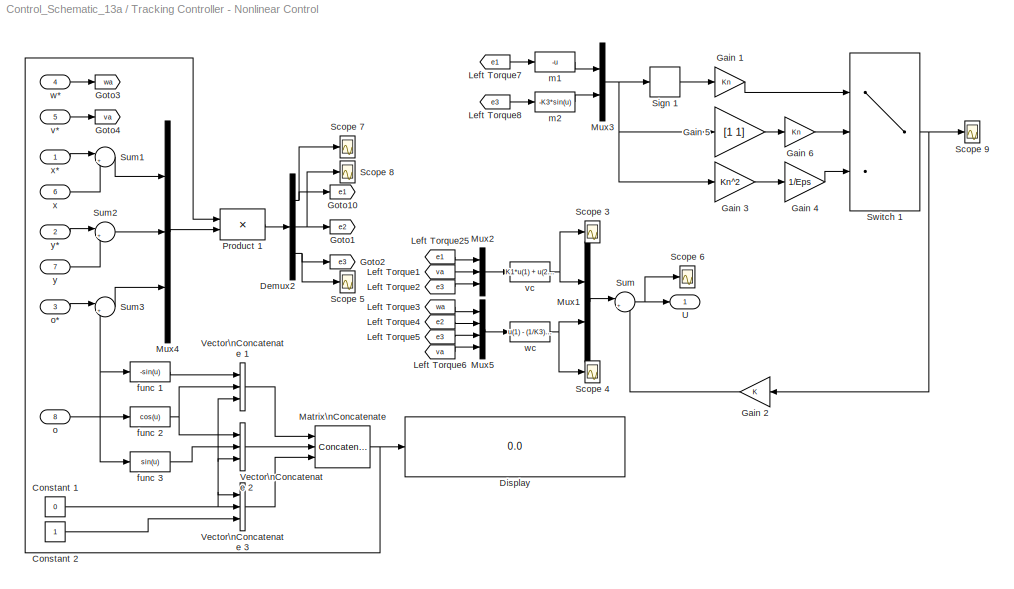
BLOCK [SubSystem] Tracking Controller - Nonlinear Control
  Ports = [8, 1]
  RequestExecContextInheritance = off
  SID = 6232
BLOCK [Constant] Tracking Controller - Nonlinear Control/Constant 1
  SID = 6241
  Value = 0
BLOCK [Constant] Tracking Controller - Nonlinear Control/Constant 2
  SID = 6242
BLOCK [Demux] Tracking Controller - Nonlinear Control/Demux2
  DisplayOption = bar
  Outputs = 3
  Ports = [1, 3]
  SID = 6243
BLOCK [Display] Tracking Controller - Nonlinear Control/Display
  Decimation = 1
  Ports = [1]
  SID = 6244
BLOCK [Gain] Tracking Controller - Nonlinear Control/Gain 1
  Gain = Kn
  OutDataTypeStr = Inherit: Inherit via internal rule
  ParamDataTypeStr = Inherit: Inherit via internal rule
  SID = 6245
  SaturateOnIntegerOverflow = off
BLOCK [Gain] Tracking Controller - Nonlinear Control/Gain 2
  OutDataTypeStr = Inherit: Inherit via internal rule
  ParamDataTypeStr = Inherit: Inherit via internal rule
  SID = 6246
  SaturateOnIntegerOverflow = off
BLOCK [Gain] Tracking Controller - Nonlinear Control/Gain 3
  Gain = Kn^2
  OutDataTypeStr = Inherit: Inherit via internal rule
  ParamDataTypeStr = Inherit: Inherit via internal rule
  SID = 6247
  SaturateOnIntegerOverflow = off
BLOCK [Gain] Tracking Controller - Nonlinear Control/Gain 4
  Gain = 1/Eps
  OutDataTypeStr = Inherit: Inherit via internal rule
  ParamDataTypeStr = Inherit: Inherit via internal rule
  SID = 6248
  SaturateOnIntegerOverflow = off
BLOCK [Gain] Tracking Controller - Nonlinear Control/Gain 5
  Gain = [1 1]
  Multiplication = Matrix(K*u)
  OutDataTypeStr = Inherit: Inherit via internal rule
  ParamDataTypeStr = Inherit: Inherit via internal rule
  SID = 6249
  SaturateOnIntegerOverflow = off
BLOCK [Gain] Tracking Controller - Nonlinear Control/Gain 6
  Gain = Kn
  OutDataTypeStr = Inherit: Inherit via internal rule
  ParamDataTypeStr = Inherit: Inherit via internal rule
  SID = 6250
  SaturateOnIntegerOverflow = off
BLOCK [Goto] Tracking Controller - Nonlinear Control/Goto1
  GotoTag = e2
  SID = 6252
BLOCK [Goto] Tracking Controller - Nonlinear Control/Goto10
  GotoTag = e1
  SID = 6253
BLOCK [Goto] Tracking Controller - Nonlinear Control/Goto2
  GotoTag = e3
  SID = 6254
BLOCK [Goto] Tracking Controller - Nonlinear Control/Goto3
  GotoTag = wa
  SID = 6255
BLOCK [Goto] Tracking Controller - Nonlinear Control/Goto4
  GotoTag = va
  SID = 6256
BLOCK [From] Tracking Controller - Nonlinear Control/Left Torque1
  GotoTag = va
  SID = 6257
BLOCK [From] Tracking Controller - Nonlinear Control/Left Torque2
  GotoTag = e3
  SID = 6258
BLOCK [From] Tracking Controller - Nonlinear Control/Left Torque25
  GotoTag = e1
  SID = 6259
BLOCK [From] Tracking Controller - Nonlinear Control/Left Torque3
  GotoTag = wa
  SID = 6260
BLOCK [From] Tracking Controller - Nonlinear Control/Left Torque4
  GotoTag = e2
  SID = 6261
BLOCK [From] Tracking Controller - Nonlinear Control/Left Torque5
  GotoTag = e3
  SID = 6262
BLOCK [From] Tracking Controller - Nonlinear Control/Left Torque6
  GotoTag = va
  SID = 6263
BLOCK [From] Tracking Controller - Nonlinear Control/Left Torque7
  GotoTag = e1
  SID = 6264
BLOCK [From] Tracking Controller - Nonlinear Control/Left Torque8
  GotoTag = e3
  SID = 6265
BLOCK [Concatenate] Tracking Controller - Nonlinear Control/Matrix\nConcatenate
  ConcatenateDimension = 2
  Mode = Multidimensional array
  NumInputs = 3
  Ports = [3, 1]
  SID = 6266
BLOCK [Mux] Tracking Controller - Nonlinear Control/Mux1
  DisplayOption = bar
  Inputs = 2
  Ports = [2, 1]
  SID = 6267
BLOCK [Mux] Tracking Controller - Nonlinear Control/Mux2
  DisplayOption = bar
  Inputs = 3
  Ports = [3, 1]
  SID = 6268
BLOCK [Mux] Tracking Controller - Nonlinear Control/Mux3
  DisplayOption = bar
  Inputs = 2
  Ports = [2, 1]
  SID = 6269
BLOCK [Mux] Tracking Controller - Nonlinear Control/Mux4
  DisplayOption = bar
  Inputs = 3
  Ports = [3, 1]
  SID = 6270
BLOCK [Mux] Tracking Controller - Nonlinear Control/Mux5
  DisplayOption = bar
  Ports = [4, 1]
  SID = 6271
BLOCK [Product] Tracking Controller - Nonlinear Control/Product 1
  InputSameDT = off
  Multiplication = Matrix(*)
  OutDataTypeStr = Inherit: Inherit via internal rule
  Ports = [2, 1]
  RndMeth = Floor
  SID = 6272
  SaturateOnIntegerOverflow = off
BLOCK [Scope] Tracking Controller - Nonlinear Control/Scope 3
  Floating = off
  LimitDataPoints = off
  NumInputPorts = 1
  Ports = [1]
  SID = 6273
  SaveName = ScopeData44
  ShowLegends = off
  YMax = 10
  YMin = -10
  ZoomMode = yonly
BLOCK [Scope] Tracking Controller - Nonlinear Control/Scope 4
  Floating = off
  LimitDataPoints = off
  NumInputPorts = 1
  Ports = [1]
  SID = 6274
  SaveName = ScopeData45
  ShowLegends = off
  YMax = 1300
  YMin = -400
  ZoomMode = yonly
BLOCK [Scope] Tracking Controller - Nonlinear Control/Scope 5
  Floating = off
  LimitDataPoints = off
  NumInputPorts = 1
  Ports = [1]
  SID = 6275
  SaveName = ScopeData47
  ShowLegends = off
BLOCK [Scope] Tracking Controller - Nonlinear Control/Scope 6
  Floating = off
  LimitDataPoints = off
  NumInputPorts = 1
  Ports = [1]
  SID = 6276
  SaveName = ScopeData12
  ShowLegends = off
  TimeRange = 388.54
  YMax = 0.5
  YMin = -0.5
  ZoomMode = yonly
BLOCK [Scope] Tracking Controller - Nonlinear Control/Scope 7
  Floating = off
  LimitDataPoints = off
  NumInputPorts = 1
  Ports = [1]
  SID = 6277
  SaveName = ScopeData48
  ShowLegends = off
  YMax = 10
  YMin = -10
  ZoomMode = yonly
BLOCK [Scope] Tracking Controller - Nonlinear Control/Scope 8
  Floating = off
  LimitDataPoints = off
  NumInputPorts = 1
  Ports = [1]
  SID = 6278
  SaveName = ScopeData49
  ShowLegends = off
  YMax = 10
  YMin = -10
  ZoomMode = yonly
BLOCK [Scope] Tracking Controller - Nonlinear Control/Scope 9
  Floating = off
  LimitDataPoints = off
  NumInputPorts = 1
  Ports = [1]
  SID = 6279
  SaveName = ScopeData50
  ShowLegends = off
  YMax = 0.1
  YMin = -0.1
  ZoomMode = yonly
BLOCK [Signum] Tracking Controller - Nonlinear Control/Sign 1
  SID = 6280
BLOCK [Sum] Tracking Controller - Nonlinear Control/Sum
  IconShape = round
  InputSameDT = off
  Inputs = |+-
  OutDataTypeStr = Inherit: Inherit via internal rule
  Ports = [2, 1]
  SID = 6281
  SaturateOnIntegerOverflow = off
BLOCK [Sum] Tracking Controller - Nonlinear Control/Sum1
  IconShape = round
  InputSameDT = off
  Inputs = |+-
  OutDataTypeStr = Inherit: Inherit via internal rule
  Ports = [2, 1]
  SID = 6282
  SaturateOnIntegerOverflow = off
BLOCK [Sum] Tracking Controller - Nonlinear Control/Sum2
  IconShape = round
  InputSameDT = off
  Inputs = |+-
  OutDataTypeStr = Inherit: Inherit via internal rule
  Ports = [2, 1]
  SID = 6283
  SaturateOnIntegerOverflow = off
BLOCK [Sum] Tracking Controller - Nonlinear Control/Sum3
  IconShape = round
  InputSameDT = off
  Inputs = |+-
  OutDataTypeStr = Inherit: Inherit via internal rule
  Ports = [2, 1]
  SID = 6284
  SaturateOnIntegerOverflow = off
BLOCK [Switch] Tracking Controller - Nonlinear Control/Switch 1
  InputSameDT = off
  SID = 6285
  SaturateOnIntegerOverflow = off
  Threshold = Eps
BLOCK [Outport] Tracking Controller - Nonlinear Control/U
  IconDisplay = Port number
  SID = 6296
BLOCK [Concatenate] Tracking Controller - Nonlinear Control/Vector\nConcatenate 1
  NumInputs = 3
  Ports = [3, 1]
  SID = 6286
BLOCK [Concatenate] Tracking Controller - Nonlinear Control/Vector\nConcatenate 2
  NumInputs = 3
  Ports = [3, 1]
  SID = 6287
BLOCK [Concatenate] Tracking Controller - Nonlinear Control/Vector\nConcatenate 3
  NumInputs = 3
  Ports = [3, 1]
  SID = 6288
BLOCK [Fcn] Tracking Controller - Nonlinear Control/func 1
  Expr = -sin(u)
  SID = 6289
BLOCK [Fcn] Tracking Controller - Nonlinear Control/func 2
  Expr = cos(u)
  SID = 6290
BLOCK [Fcn] Tracking Controller - Nonlinear Control/func 3
  Expr = sin(u)
  SID = 6291
BLOCK [Fcn] Tracking Controller - Nonlinear Control/m1
  Expr = -u
  SID = 6292
BLOCK [Fcn] Tracking Controller - Nonlinear Control/m2
  Expr = -K3*sin(u)
  SID = 6293
BLOCK [Inport] Tracking Controller - Nonlinear Control/o
  IconDisplay = Port number
  Port = 8
  SID = 6240
BLOCK [Inport] Tracking Controller - Nonlinear Control/o*
  IconDisplay = Port number
  Port = 3
  SID = 6235
BLOCK [Inport] Tracking Controller - Nonlinear Control/v*
  IconDisplay = Port number
  Port = 5
  SID = 6237
BLOCK [Fcn] Tracking Controller - Nonlinear Control/vc
  Expr = K1*u(1) + u(2)*cos(u(3))
  SID = 6294
BLOCK [Inport] Tracking Controller - Nonlinear Control/w*
  IconDisplay = Port number
  Port = 4
  SID = 6236
BLOCK [Fcn] Tracking Controller - Nonlinear Control/wc
  Expr = u(1) - (1/K3)*u(2)*u(4) + (K2/K3)*sin(u(3))
  SID = 6295
BLOCK [Inport] Tracking Controller - Nonlinear Control/x
  IconDisplay = Port number
  Port = 6
  SID = 6238
BLOCK [Inport] Tracking Controller - Nonlinear Control/x*
  IconDisplay = Port number
  SID = 6233
BLOCK [Inport] Tracking Controller - Nonlinear Control/y
  IconDisplay = Port number
  Port = 7
  SID = 6239
BLOCK [Inport] Tracking Controller - Nonlinear Control/y*
  IconDisplay = Port number
  Port = 2
  SID = 6234
BLOCK [UnitDelay] Unit Delay 2
  InputProcessing = Elements as channels (sample based)
  SID = 6297
  SampleTime = -1
BLOCK [Scope] X Distance
  Floating = off
  LimitDataPoints = off
  NumInputPorts = 1
  Ports = [1]
  SID = 4
  SaveName = ScopeData4
  ShowLegends = off
  YMax = 5000
  YMin = 0
  ZoomMode = yonly
BLOCK [Scope] X Distance (Noisy)
  Floating = off
  LimitDataPoints = off
  NumInputPorts = 1
  Ports = [1]
  SID = 6411
  SaveName = ScopeData38
  ShowLegends = off
  YMax = 2600
  YMin = 0
BLOCK [Reference] XY Graph 1  REF=simulink/Sinks/XY Graph
  Ports = [2]
  SID = 5419
  SourceBlock = simulink/Sinks/XY Graph
  SourceType = XY scope.
  st = -1
  xmax = 5000
  xmin = 0
  ymax = 5000
  ymin = 0
BLOCK [Reference] XY Graph 2  REF=simulink/Sinks/XY Graph
  Ports = [2]
  SID = 6532
  SourceBlock = simulink/Sinks/XY Graph
  SourceType = XY scope.
  st = -1
  xmax = 5000
  xmin = 0
  ymax = 5000
  ymin = 0
BLOCK [Scope] Y Distance
  Floating = off
  LimitDataPoints = off
  NumInputPorts = 1
  Ports = [1]
  SID = 5
  ShowLegends = off
  YMax = 5000
  YMin = 0
  ZoomMode = yonly
BLOCK [Scope] Y Distance (Noisy)
  Floating = off
  LimitDataPoints = off
  NumInputPorts = 1
  Ports = [1]
  SID = 6412
  SaveName = ScopeData41
  ShowLegends = off
  YMax = 2600
  YMin = 0
BLOCK [Fcn] v*
  Expr = sqrt(u(1)^2 + u(2)^2)
  SID = 6298
ANNOTATION (root): Noise Signals
NET Demux1:1 -> Goto8:1, Scope 1:1
NET Demux1:2 -> Goto9:1, Scope 2:1
NET Demux1:3 -> Goto13:1, Scope 8:1
NET Demux1:4 -> Goto14:1, Scope 9:1
NET Demux2:1 -> Goto11:1, Scope 3:1
NET Demux2:2 -> Goto12:1, Scope 4:1
NET Demux3:1 -> Goto19:1, Right Angular Velocity11:1
NET Demux3:2 -> Goto16:1, Right Angular Velocity14:1
NET Demux3:3 -> Goto17:1, Right Angular Velocity16:1
NET Demux3:4 -> Goto18:1, Right Angular Velocity15:1
NET Demux4:1 -> Goto1:1, Right Angular Velocity2:1, Tracking Controller - Nonlinear Control:6
NET Demux4:2 -> Goto7:1, Right Angular Velocity7:1, Tracking Controller - Nonlinear Control:7
NET Demux4:3 -> Goto22:1, Right Angular Velocity8:1, Tracking Controller - Nonlinear Control:8
LINE Demux5:1 -> Tracking Controller - Nonlinear Control:1
LINE Demux5:2 -> Tracking Controller - Nonlinear Control:2
LINE Demux6:1 -> Goto23:1
LINE Demux6:2 -> Goto24:1
LINE Demux7:1 -> Mux14:1
LINE Demux7:2 -> Mux15:1
LINE Demux8:1 -> XY Graph 2:1
LINE Demux8:2 -> XY Graph 2:2
NET Demux9:1 -> Goto2:1, Right Wheel Angular Velocity:1
NET Demux9:2 -> Goto3:1, Left Wheel Angular Velocity:1
NET Demux9:3 -> Goto4:1, Orientation Angle:1
NET Demux9:4 -> Goto5:1, Sum:1, X Distance:1
NET Demux9:5 -> Goto6:1, Sum1:1, Y Distance:1
NET Discrete-Time\nIntegrator1:1 -> Goto29:1, Scope 13:1, To Workspace 2:1
NET Discrete-Time\nIntegrator2:1 -> Goto25:1, Right Angular Velocity12:1
NET Discrete-Time\nIntegrator3:1 -> Goto26:1, Right Angular Velocity13:1
NET Extended Kalman filter/Demux:1 -> Extended Kalman filter/Sum1:1, Extended Kalman filter/Unit Delay 2:1
NET Extended Kalman filter/Demux:2 -> Extended Kalman filter/Sum:1, Extended Kalman filter/Unit Delay 1:1
NET Extended Kalman filter/F_i/Constant 1:1 -> Extended Kalman filter/F_i/Vector\nConcatenate1:1, Extended Kalman filter/F_i/Vector\nConcatenate2:2, Extended Kalman filter/F_i/Vector\nConcatenate3:3
NET Extended Kalman filter/F_i/Constant 2:1 -> Extended Kalman filter/F_i/Vector\nConcatenate1:2, Extended Kalman filter/F_i/Vector\nConcatenate1:3, Extended Kalman filter/F_i/Vector\nConcatenate2:1, Extended Kalman filter/F_i/Vector\nConcatenate2:3
LINE Extended Kalman filter/F_i/Fcn 1:1 -> Extended Kalman filter/F_i/Vector\nConcatenate3:1
LINE Extended Kalman filter/F_i/Fcn 2:1 -> Extended Kalman filter/F_i/Vector\nConcatenate3:2
NET Extended Kalman filter/F_i/In:1 -> Extended Kalman filter/F_i/Fcn 1:1, Extended Kalman filter/F_i/Fcn 2:1
NET Extended Kalman filter/F_i/Matrix\nConcatenate:1 -> Extended Kalman filter/F_i/Display:1, Extended Kalman filter/F_i/Out:1
LINE Extended Kalman filter/F_i/Vector\nConcatenate1:1 -> Extended Kalman filter/F_i/Matrix\nConcatenate:1
LINE Extended Kalman filter/F_i/Vector\nConcatenate2:1 -> Extended Kalman filter/F_i/Matrix\nConcatenate:2
LINE Extended Kalman filter/F_i/Vector\nConcatenate3:1 -> Extended Kalman filter/F_i/Matrix\nConcatenate:3
LINE Extended Kalman filter/F_i:1 -> Extended Kalman filter/K_i:5
NET Extended Kalman filter/Fcn 3:1 -> Extended Kalman filter/Mux1:2, Extended Kalman filter/Unit Delay 7:1
NET Extended Kalman filter/Fcn 4:1 -> Extended Kalman filter/Mux1:1, Extended Kalman filter/Unit Delay 8:1
LINE Extended Kalman filter/G_i/Constant 1:1 -> Extended Kalman filter/G_i/Vector\nConcatenate1:3
LINE Extended Kalman filter/G_i/Constant 2:1 -> Extended Kalman filter/G_i/Vector\nConcatenate3:3
LINE Extended Kalman filter/G_i/Fcn 1:1 -> Extended Kalman filter/G_i/Vector\nConcatenate3:1
LINE Extended Kalman filter/G_i/Fcn 2:1 -> Extended Kalman filter/G_i/Vector\nConcatenate3:2
LINE Extended Kalman filter/G_i/Fcn 3:1 -> Extended Kalman filter/G_i/Vector\nConcatenate1:1
LINE Extended Kalman filter/G_i/Fcn 4:1 -> Extended Kalman filter/G_i/Vector\nConcatenate1:2
NET Extended Kalman filter/G_i/In:1 -> Extended Kalman filter/G_i/Fcn 1:1, Extended Kalman filter/G_i/Fcn 2:1, Extended Kalman filter/G_i/Fcn 3:1, Extended Kalman filter/G_i/Fcn 4:1
NET Extended Kalman filter/G_i/Matrix\nConcatenate:1 -> Extended Kalman filter/G_i/Display:1, Extended Kalman filter/G_i/Out:1
LINE Extended Kalman filter/G_i/Vector\nConcatenate1:1 -> Extended Kalman filter/G_i/Matrix\nConcatenate:2
LINE Extended Kalman filter/G_i/Vector\nConcatenate3:1 -> Extended Kalman filter/G_i/Matrix\nConcatenate:1
LINE Extended Kalman filter/G_i:1 -> Extended Kalman filter/K_i:4
NET Extended Kalman filter/Gain 1:1 -> Extended Kalman filter/Goto2:1, Extended Kalman filter/Right Angular Velocity1:1
LINE Extended Kalman filter/Gain 2:1 -> Extended Kalman filter/Demux:1
LINE Extended Kalman filter/Gain 4:1 -> Extended Kalman filter/Goto4:1
NET Extended Kalman filter/Gain 5:1 -> Extended Kalman filter/Goto3:1, Extended Kalman filter/Right Angular Velocity6:1
LINE Extended Kalman filter/H_i:1 -> Extended Kalman filter/K_i:2
LINE Extended Kalman filter/K_i/ LU Inverse:1 -> Extended Kalman filter/K_i/Product 7:3
NET Extended Kalman filter/K_i/F_i:1 -> Extended Kalman filter/K_i/Math\nFunction 2:1, Extended Kalman filter/K_i/Product 2:1
NET Extended Kalman filter/K_i/G_i:1 -> Extended Kalman filter/K_i/Math\nFunction 1:1, Extended Kalman filter/K_i/Product 1:1
NET Extended Kalman filter/K_i/H_i:1 -> Extended Kalman filter/K_i/Math\nFunction 3:1, Extended Kalman filter/K_i/Product 3:2, Extended Kalman filter/K_i/Product 5:1
LINE Extended Kalman filter/K_i/Math\nFunction 1:1 -> Extended Kalman filter/K_i/Product 1:3
LINE Extended Kalman filter/K_i/Math\nFunction 2:1 -> Extended Kalman filter/K_i/Product 2:3
NET Extended Kalman filter/K_i/Math\nFunction 3:1 -> Extended Kalman filter/K_i/Product 5:3, Extended Kalman filter/K_i/Product 7:2
LINE Extended Kalman filter/K_i/Product 1:1 -> Extended Kalman filter/K_i/Sum3:1
LINE Extended Kalman filter/K_i/Product 2:1 -> Extended Kalman filter/K_i/Sum3:2
LINE Extended Kalman filter/K_i/Product 3:1 -> Extended Kalman filter/K_i/Product 4:1
LINE Extended Kalman filter/K_i/Product 4:1 -> Extended Kalman filter/K_i/Sum1:1
LINE Extended Kalman filter/K_i/Product 5:1 -> Extended Kalman filter/K_i/Sum2:2
NET Extended Kalman filter/K_i/Product 7:1 -> Extended Kalman filter/K_i/Display:1, Extended Kalman filter/K_i/Out:1, Extended Kalman filter/K_i/Product 3:1
LINE Extended Kalman filter/K_i/Q_i:1 -> Extended Kalman filter/K_i/Product 1:2
LINE Extended Kalman filter/K_i/R_i:1 -> Extended Kalman filter/K_i/Sum2:1
LINE Extended Kalman filter/K_i/Sum1:1 -> Extended Kalman filter/K_i/Unit Delay 4:1
LINE Extended Kalman filter/K_i/Sum2:1 -> Extended Kalman filter/K_i/ LU Inverse:1
NET Extended Kalman filter/K_i/Sum3:1 -> Extended Kalman filter/K_i/Product 4:2, Extended Kalman filter/K_i/Product 5:2, Extended Kalman filter/K_i/Product 7:1, Extended Kalman filter/K_i/Sum1:2
LINE Extended Kalman filter/K_i/Unit Delay 4:1 -> Extended Kalman filter/K_i/Product 2:2
LINE Extended Kalman filter/K_i:1 -> Extended Kalman filter/f_i:4
LINE Extended Kalman filter/Left Torque10:1 -> Extended Kalman filter/f_i:2
LINE Extended Kalman filter/Left Torque11:1 -> Extended Kalman filter/Q_i:1
LINE Extended Kalman filter/Left Torque12:1 -> Extended Kalman filter/Q_i:2
LINE Extended Kalman filter/Left Torque13:1 -> Extended Kalman filter/Manual Switch 1:1
LINE Extended Kalman filter/Left Torque19:1 -> Extended Kalman filter/f_i:3
LINE Extended Kalman filter/Left Torque1:1 -> Extended Kalman filter/Sum2:1
LINE Extended Kalman filter/Left Torque28:1 -> Extended Kalman filter/Mux4:2
LINE Extended Kalman filter/Left Torque29:1 -> Extended Kalman filter/Mux5:2
LINE Extended Kalman filter/Left Torque2:1 -> Extended Kalman filter/Sum2:2
LINE Extended Kalman filter/Left Torque30:1 -> Extended Kalman filter/Sum10:1
LINE Extended Kalman filter/Left Torque3:1 -> Extended Kalman filter/Sum3:1
LINE Extended Kalman filter/Left Torque4:1 -> Extended Kalman filter/Sum3:2
LINE Extended Kalman filter/Left Torque5:1 -> Extended Kalman filter/Mux2:2
NET Extended Kalman filter/Left Torque8:1 -> Extended Kalman filter/Mux3:1, Extended Kalman filter/f_i:1
NET Extended Kalman filter/Manual Switch 1:1 -> Extended Kalman filter/Right Angular Velocity4:1, Extended Kalman filter/X_i:1
LINE Extended Kalman filter/Mux1:1 -> Extended Kalman filter/Gain 4:1
LINE Extended Kalman filter/Mux2:1 -> Extended Kalman filter/Right Angular Velocity3:1
NET Extended Kalman filter/Mux3:1 -> Extended Kalman filter/F_i:1, Extended Kalman filter/G_i:1
LINE Extended Kalman filter/Mux4:1 -> Extended Kalman filter/Fcn 3:1
LINE Extended Kalman filter/Mux5:1 -> Extended Kalman filter/Fcn 4:1
NET Extended Kalman filter/Q_i/Abs 2:1 -> Extended Kalman filter/Q_i/Alpha_1:1, Extended Kalman filter/Q_i/Alpha_3:1
NET Extended Kalman filter/Q_i/Abs 3:1 -> Extended Kalman filter/Q_i/Alpha_2:1, Extended Kalman filter/Q_i/Alpha_4:1
LINE Extended Kalman filter/Q_i/Alpha_1:1 -> Extended Kalman filter/Q_i/Sum:1
LINE Extended Kalman filter/Q_i/Alpha_2:1 -> Extended Kalman filter/Q_i/Sum:2
LINE Extended Kalman filter/Q_i/Alpha_3:1 -> Extended Kalman filter/Q_i/Sum1:1
LINE Extended Kalman filter/Q_i/Alpha_4:1 -> Extended Kalman filter/Q_i/Sum1:2
NET Extended Kalman filter/Q_i/Constant 2:1 -> Extended Kalman filter/Q_i/Vector\nConcatenate1:1, Extended Kalman filter/Q_i/Vector\nConcatenate3:2
LINE Extended Kalman filter/Q_i/In 1:1 -> Extended Kalman filter/Q_i/Abs 2:1
LINE Extended Kalman filter/Q_i/In 2:1 -> Extended Kalman filter/Q_i/Abs 3:1
LINE Extended Kalman filter/Q_i/Math\nFunction 1:1 -> Extended Kalman filter/Q_i/Vector\nConcatenate3:1
LINE Extended Kalman filter/Q_i/Math\nFunction 2:1 -> Extended Kalman filter/Q_i/Vector\nConcatenate1:2
NET Extended Kalman filter/Q_i/Matrix\nConcatenate:1 -> Extended Kalman filter/Q_i/Display:1, Extended Kalman filter/Q_i/Out:1
LINE Extended Kalman filter/Q_i/Sum1:1 -> Extended Kalman filter/Q_i/Math\nFunction 2:1
LINE Extended Kalman filter/Q_i/Sum:1 -> Extended Kalman filter/Q_i/Math\nFunction 1:1
LINE Extended Kalman filter/Q_i/Vector\nConcatenate1:1 -> Extended Kalman filter/Q_i/Matrix\nConcatenate:2
LINE Extended Kalman filter/Q_i/Vector\nConcatenate3:1 -> Extended Kalman filter/Q_i/Matrix\nConcatenate:1
LINE Extended Kalman filter/Q_i:1 -> Extended Kalman filter/K_i:3
LINE Extended Kalman filter/R_i:1 -> Extended Kalman filter/K_i:1
NET Extended Kalman filter/Sum10:1 -> Extended Kalman filter/Mux1:3, Extended Kalman filter/Unit Delay 3:1
LINE Extended Kalman filter/Sum1:1 -> Extended Kalman filter/Goto1:1
LINE Extended Kalman filter/Sum2:1 -> Extended Kalman filter/Gain 1:1
LINE Extended Kalman filter/Sum3:1 -> Extended Kalman filter/Gain 5:1
LINE Extended Kalman filter/Sum:1 -> Extended Kalman filter/Goto19:1
LINE Extended Kalman filter/U:1 -> Extended Kalman filter/Gain 2:1
LINE Extended Kalman filter/Unit Delay 1:1 -> Extended Kalman filter/Sum:2
LINE Extended Kalman filter/Unit Delay 2:1 -> Extended Kalman filter/Sum1:2
NET Extended Kalman filter/Unit Delay 3:1 -> Extended Kalman filter/Mux4:3, Extended Kalman filter/Mux5:3, Extended Kalman filter/Right Angular Velocity5:1, Extended Kalman filter/Sum10:2
NET Extended Kalman filter/Unit Delay 7:1 -> Extended Kalman filter/Mux4:1, Extended Kalman filter/Right Angular Velocity7:1
NET Extended Kalman filter/Unit Delay 8:1 -> Extended Kalman filter/Mux5:1, Extended Kalman filter/Right Angular Velocity8:1
LINE Extended Kalman filter/Z:1 -> Extended Kalman filter/Sigma_b4:1
NET Extended Kalman filter/f_i/Delta_s,c:1 -> Extended Kalman filter/f_i/Mux1:1, Extended Kalman filter/f_i/Mux2:1
LINE Extended Kalman filter/f_i/Delta_theta,c:1 -> Extended Kalman filter/f_i/Mux:3
LINE Extended Kalman filter/f_i/Fcn 1:1 -> Extended Kalman filter/f_i/Mux:1
LINE Extended Kalman filter/f_i/Fcn 2:1 -> Extended Kalman filter/f_i/Mux:2
LINE Extended Kalman filter/f_i/Gain 1:1 -> Extended Kalman filter/f_i/Sum2:2
LINE Extended Kalman filter/f_i/Gain 2:1 -> Extended Kalman filter/f_i/Theta_i:1
NET Extended Kalman filter/f_i/Gain 6:1 -> Extended Kalman filter/f_i/Mux1:2, Extended Kalman filter/f_i/Mux2:2
LINE Extended Kalman filter/f_i/K_i:1 -> Extended Kalman filter/f_i/Product 1:1
LINE Extended Kalman filter/f_i/Mux1:1 -> Extended Kalman filter/f_i/Fcn 2:1
LINE Extended Kalman filter/f_i/Mux2:1 -> Extended Kalman filter/f_i/Fcn 1:1
LINE Extended Kalman filter/f_i/Mux:1 -> Extended Kalman filter/f_i/Sum4:2
LINE Extended Kalman filter/f_i/Product 1:1 -> Extended Kalman filter/f_i/Sum4:3
LINE Extended Kalman filter/f_i/Sum2:1 -> Extended Kalman filter/f_i/Product 1:2
NET Extended Kalman filter/f_i/Sum4:1 -> Extended Kalman filter/f_i/Gain 1:1, Extended Kalman filter/f_i/Gain 2:1, Extended Kalman filter/f_i/Gain 6:1, Extended Kalman filter/f_i/Right Angular Velocity3:1, Extended Kalman filter/f_i/Unit Delay 7:1, Extended Kalman filter/f_i/X_i:1
LINE Extended Kalman filter/f_i/Unit Delay 7:1 -> Extended Kalman filter/f_i/Sum4:1
LINE Extended Kalman filter/f_i/Z_i:1 -> Extended Kalman filter/f_i/Sum2:1
NET Extended Kalman filter/f_i:1 -> Extended Kalman filter/Manual Switch 1:2, Extended Kalman filter/Mux2:1
LINE Extended Kalman filter/f_i:2 -> Extended Kalman filter/Mux3:2
LINE Extended Kalman filter:1 -> Demux4:1
LINE From\nWorkspace:1 -> Demux3:1
LINE Gain 2:1 -> Demux2:1
LINE Lagrangian Model for\nDiferBot_1:1 -> Demux9:1
LINE Left Torque11:1 -> Mux3:1
LINE Left Torque12:1 -> Mux3:2
LINE Left Torque14:1 -> Mux16:1
LINE Left Torque15:1 -> Mux16:2
LINE Left Torque16:1 -> Mux4:1
LINE Left Torque17:1 -> Mux4:2
LINE Left Torque18:1 -> Mux5:1
LINE Left Torque19:1 -> Mux5:2
LINE Left Torque1:1 -> Mux1:1
LINE Left Torque20:1 -> Torque control:1
LINE Left Torque21:1 -> Torque control:2
LINE Left Torque22:1 -> Mux10:1
LINE Left Torque23:1 -> Torque control:3
LINE Left Torque24:1 -> Torque control:4
LINE Left Torque25:1 -> Torque control:5
LINE Left Torque26:1 -> Torque control:6
LINE Left Torque27:1 -> Mux6:1
LINE Left Torque28:1 -> Mux6:2
LINE Left Torque29:1 -> Mux7:1
LINE Left Torque2:1 -> Mux1:2
LINE Left Torque30:1 -> Mux7:2
LINE Left Torque31:1 -> Discrete-Time\nIntegrator2:1
LINE Left Torque32:1 -> Mux8:1
LINE Left Torque33:1 -> Mux8:2
LINE Left Torque34:1 -> Mux9:1
LINE Left Torque35:1 -> Mux9:2
LINE Left Torque36:1 -> Demux5:1
LINE Left Torque37:1 -> v*:1
LINE Left Torque38:1 -> Tracking Controller - Nonlinear Control:4
LINE Left Torque39:1 -> Discrete-Time\nIntegrator3:1
LINE Left Torque3:1 -> Mux1:3
LINE Left Torque40:1 -> Tracking Controller - Nonlinear Control:3
LINE Left Torque41:1 -> Mux10:2
LINE Left Torque42:1 -> Mux11:1
LINE Left Torque43:1 -> Mux11:2
LINE Left Torque44:1 -> Mux12:1
LINE Left Torque45:1 -> Mux12:2
LINE Left Torque46:1 -> Mux13:1
LINE Left Torque47:1 -> Mux13:2
NET Left Torque48:1 -> Demux7:1, Demux8:1
LINE Left Torque49:1 -> Mux14:2
LINE Left Torque4:1 -> XY Graph 1:1
LINE Left Torque50:1 -> Mux15:2
LINE Left Torque5:1 -> XY Graph 1:2
LINE Left Torque6:1 -> Mux2:1
LINE Left Torque7:1 -> Mux2:2
LINE Left Torque8:1 -> Mux2:3
LINE Left Torque9:1 -> Mux2:4
NET Mux10:1 -> Discrete-Time\nIntegrator1:1, Goto30:1
LINE Mux11:1 -> Scope 16:1
LINE Mux12:1 -> Scope 17:1
LINE Mux13:1 -> Scope 18:1
LINE Mux14:1 -> Scope 19:1
LINE Mux15:1 -> Scope 20:1
LINE Mux16:1 -> Lagrangian Model for\nDiferBot_1:1
LINE Mux1:1 -> To Workspace 1:1
LINE Mux2:1 -> Non-linear Observer:1
LINE Mux3:1 -> Gain 2:1
LINE Mux4:1 -> Scope 14:1
LINE Mux5:1 -> Scope 15:1
LINE Mux6:1 -> Scope 5:1
LINE Mux7:1 -> Scope 6:1
LINE Mux8:1 -> Extended Kalman filter:1
LINE Mux9:1 -> Extended Kalman filter:2
LINE Non-linear Observer:1 -> Demux1:1
LINE Random\nNumber 1:1 -> Sum:2
LINE Random\nNumber 2:1 -> Sum1:2
NET Sum1:1 -> Goto28:1, Y Distance (Noisy):1
NET Sum:1 -> Goto27:1, X Distance (Noisy):1
LINE Torque control/Add 1:1 -> Torque control/Gain 1:1
LINE Torque control/Add 2:1 -> Torque control/Gain 3:1
LINE Torque control/Clutch 1/Constant1:1 -> Torque control/Clutch 1/Switch:1
LINE Torque control/Clutch 1/Digital Clock:1 -> Torque control/Clutch 1/Switch:2
NET Torque control/Clutch 1/Gain 1:1 -> Torque control/Clutch 1/Product:1, Torque control/Clutch 1/Rear Wheel Angular Speed5:1
LINE Torque control/Clutch 1/Input:1 -> Torque control/Clutch 1/Product:2
LINE Torque control/Clutch 1/Product:1 -> Torque control/Clutch 1/Output:1
LINE Torque control/Clutch 1/Sine Wave:1 -> Torque control/Clutch 1/Switch:3
LINE Torque control/Clutch 1/Switch:1 -> Torque control/Clutch 1/Gain 1:1
NET Torque control/Clutch 1:1 -> Torque control/Goto6:1, Torque control/Tracking Differentiator 1:1
LINE Torque control/Clutch 2/Constant1:1 -> Torque control/Clutch 2/Switch:1
LINE Torque control/Clutch 2/Digital Clock:1 -> Torque control/Clutch 2/Switch:2
NET Torque control/Clutch 2/Gain 1:1 -> Torque control/Clutch 2/Product:1, Torque control/Clutch 2/Rear Wheel Angular Speed5:1
LINE Torque control/Clutch 2/Input:1 -> Torque control/Clutch 2/Product:2
LINE Torque control/Clutch 2/Product:1 -> Torque control/Clutch 2/Output:1
LINE Torque control/Clutch 2/Sine Wave:1 -> Torque control/Clutch 2/Switch:3
LINE Torque control/Clutch 2/Switch:1 -> Torque control/Clutch 2/Gain 1:1
NET Torque control/Clutch 2:1 -> Torque control/Goto21:1, Torque control/Tracking Differentiator 2:1
NET Torque control/Demux:1 -> Torque control/Saturation 1:1, Torque control/Scope 3:1
NET Torque control/Demux:2 -> Torque control/Saturation 2:1, Torque control/Scope 4:1
LINE Torque control/Gain 1:1 -> Torque control/Goto4:1
LINE Torque control/Gain 2:1 -> Torque control/Add 1:3
LINE Torque control/Gain 3:1 -> Torque control/Goto5:1
LINE Torque control/Gain 4:1 -> Torque control/Add 2:3
LINE Torque control/Gain 5:1 -> Torque control/Gain 6:1
LINE Torque control/Gain 6:1 -> Torque control/Demux:1
LINE Torque control/Left Torque11:1 -> Torque control/Mux3:1
LINE Torque control/Left Torque12:1 -> Torque control/Mux3:2
LINE Torque control/Left Torque1:1 -> Torque control/Sum1:2
LINE Torque control/Left Torque2:1 -> Torque control/Add 1:1
LINE Torque control/Left Torque3:1 -> Torque control/Add 1:2
LINE Torque control/Left Torque4:1 -> Torque control/Gain 2:1
LINE Torque control/Left Torque5:1 -> Torque control/Add 2:1
LINE Torque control/Left Torque6:1 -> Torque control/Sum:2
LINE Torque control/Left Torque7:1 -> Torque control/Add 2:2
LINE Torque control/Left Torque8:1 -> Torque control/Gain 4:1
LINE Torque control/Mux3:1 -> Torque control/Gain 5:1
LINE Torque control/Saturation 1:1 -> Torque control/Tl:1
LINE Torque control/Saturation 2:1 -> Torque control/Tr:1
NET Torque control/Sum1:1 -> Torque control/Goto1:1, Torque control/Scope 2:1
NET Torque control/Sum:1 -> Torque control/Goto19:1, Torque control/Scope 1:1
LINE Torque control/Tracking Differentiator 1/Abs1:1 -> Torque control/Tracking Differentiator 1/Switch:2
LINE Torque control/Tracking Differentiator 1/Abs2:1 -> Torque control/Tracking Differentiator 1/Switch1:2
LINE Torque control/Tracking Differentiator 1/Abs:1 -> Torque control/Tracking Differentiator 1/Gain6:1
LINE Torque control/Tracking Differentiator 1/Add1:1 -> Torque control/Tracking Differentiator 1/Goto10:1
LINE Torque control/Tracking Differentiator 1/Constant1:1 -> Torque control/Tracking Differentiator 1/Sum4:2
LINE Torque control/Tracking Differentiator 1/Constant:1 -> Torque control/Tracking Differentiator 1/Sum2:2
LINE Torque control/Tracking Differentiator 1/Demux:1 -> Torque control/Tracking Differentiator 1/Goto5:1
LINE Torque control/Tracking Differentiator 1/Demux:2 -> Torque control/Tracking Differentiator 1/Goto6:1
LINE Torque control/Tracking Differentiator 1/Demux:3 -> Torque control/Tracking Differentiator 1/Goto7:1
LINE Torque control/Tracking Differentiator 1/From11:1 -> Torque control/Tracking Differentiator 1/Gain5:1
LINE Torque control/Tracking Differentiator 1/From12:1 -> Torque control/Tracking Differentiator 1/Abs:1
LINE Torque control/Tracking Differentiator 1/From13:1 -> Torque control/Tracking Differentiator 1/Abs1:1
LINE Torque control/Tracking Differentiator 1/From14:1 -> Torque control/Tracking Differentiator 1/Sum3:1
LINE Torque control/Tracking Differentiator 1/From15:1 -> Torque control/Tracking Differentiator 1/Sum4:1
LINE Torque control/Tracking Differentiator 1/From16:1 -> Torque control/Tracking Differentiator 1/X1:1
LINE Torque control/Tracking Differentiator 1/From17:1 -> Torque control/Tracking Differentiator 1/X2:1
LINE Torque control/Tracking Differentiator 1/From18:1 -> Torque control/Tracking Differentiator 1/X3:1
LINE Torque control/Tracking Differentiator 1/From19:1 -> Torque control/Tracking Differentiator 1/Sign:1
LINE Torque control/Tracking Differentiator 1/From20:1 -> Torque control/Tracking Differentiator 1/Sum5:1
LINE Torque control/Tracking Differentiator 1/From26:1 -> Torque control/Tracking Differentiator 1/Gain10:1
LINE Torque control/Tracking Differentiator 1/From27:1 -> Torque control/Tracking Differentiator 1/Tracking Differentiator:1
NET Torque control/Tracking Differentiator 1/From8:1 -> Torque control/Tracking Differentiator 1/Abs2:1, Torque control/Tracking Differentiator 1/Gain13:1, Torque control/Tracking Differentiator 1/Sign1:1
LINE Torque control/Tracking Differentiator 1/From9:1 -> Torque control/Tracking Differentiator 1/Add1:1
LINE Torque control/Tracking Differentiator 1/Gain10:1 -> Torque control/Tracking Differentiator 1/Sum5:2
LINE Torque control/Tracking Differentiator 1/Gain11:1 -> Torque control/Tracking Differentiator 1/Goto13:1
LINE Torque control/Tracking Differentiator 1/Gain12:1 -> Torque control/Tracking Differentiator 1/Switch1:1
LINE Torque control/Tracking Differentiator 1/Gain13:1 -> Torque control/Tracking Differentiator 1/Switch1:3
LINE Torque control/Tracking Differentiator 1/Gain5:1 -> Torque control/Tracking Differentiator 1/Add1:3
LINE Torque control/Tracking Differentiator 1/Gain6:1 -> Torque control/Tracking Differentiator 1/Sum2:1
LINE Torque control/Tracking Differentiator 1/Gain9:1 -> Torque control/Tracking Differentiator 1/Product:2
LINE Torque control/Tracking Differentiator 1/Product:1 -> Torque control/Tracking Differentiator 1/Sum3:2
LINE Torque control/Tracking Differentiator 1/Reference:1 -> Torque control/Tracking Differentiator 1/Add1:2
LINE Torque control/Tracking Differentiator 1/Sign1:1 -> Torque control/Tracking Differentiator 1/Gain12:1
LINE Torque control/Tracking Differentiator 1/Sign:1 -> Torque control/Tracking Differentiator 1/Product:1
LINE Torque control/Tracking Differentiator 1/Sqrt:1 -> Torque control/Tracking Differentiator 1/Goto11:1
LINE Torque control/Tracking Differentiator 1/Sum2:1 -> Torque control/Tracking Differentiator 1/Sqrt:1
LINE Torque control/Tracking Differentiator 1/Sum3:1 -> Torque control/Tracking Differentiator 1/Switch:1
LINE Torque control/Tracking Differentiator 1/Sum4:1 -> Torque control/Tracking Differentiator 1/Gain9:1
LINE Torque control/Tracking Differentiator 1/Sum5:1 -> Torque control/Tracking Differentiator 1/Switch:3
LINE Torque control/Tracking Differentiator 1/Switch1:1 -> Torque control/Tracking Differentiator 1/Gain11:1
LINE Torque control/Tracking Differentiator 1/Switch:1 -> Torque control/Tracking Differentiator 1/Goto12:1
LINE Torque control/Tracking Differentiator 1/Tracking Differentiator:1 -> Torque control/Tracking Differentiator 1/Demux:1
NET Torque control/Tracking Differentiator 1:2 -> Torque control/Goto7:1, Torque control/Scope 5:1
LINE Torque control/Tracking Differentiator 2/Abs1:1 -> Torque control/Tracking Differentiator 2/Switch:2
LINE Torque control/Tracking Differentiator 2/Abs2:1 -> Torque control/Tracking Differentiator 2/Switch1:2
LINE Torque control/Tracking Differentiator 2/Abs:1 -> Torque control/Tracking Differentiator 2/Gain6:1
LINE Torque control/Tracking Differentiator 2/Add1:1 -> Torque control/Tracking Differentiator 2/Goto10:1
LINE Torque control/Tracking Differentiator 2/Constant1:1 -> Torque control/Tracking Differentiator 2/Sum4:2
LINE Torque control/Tracking Differentiator 2/Constant:1 -> Torque control/Tracking Differentiator 2/Sum2:2
LINE Torque control/Tracking Differentiator 2/Demux:1 -> Torque control/Tracking Differentiator 2/Goto5:1
LINE Torque control/Tracking Differentiator 2/Demux:2 -> Torque control/Tracking Differentiator 2/Goto6:1
LINE Torque control/Tracking Differentiator 2/Demux:3 -> Torque control/Tracking Differentiator 2/Goto7:1
LINE Torque control/Tracking Differentiator 2/From11:1 -> Torque control/Tracking Differentiator 2/Gain5:1
LINE Torque control/Tracking Differentiator 2/From12:1 -> Torque control/Tracking Differentiator 2/Abs:1
LINE Torque control/Tracking Differentiator 2/From13:1 -> Torque control/Tracking Differentiator 2/Abs1:1
LINE Torque control/Tracking Differentiator 2/From14:1 -> Torque control/Tracking Differentiator 2/Sum3:1
LINE Torque control/Tracking Differentiator 2/From15:1 -> Torque control/Tracking Differentiator 2/Sum4:1
LINE Torque control/Tracking Differentiator 2/From16:1 -> Torque control/Tracking Differentiator 2/X1:1
LINE Torque control/Tracking Differentiator 2/From17:1 -> Torque control/Tracking Differentiator 2/X2:1
LINE Torque control/Tracking Differentiator 2/From18:1 -> Torque control/Tracking Differentiator 2/X3:1
LINE Torque control/Tracking Differentiator 2/From19:1 -> Torque control/Tracking Differentiator 2/Sign:1
LINE Torque control/Tracking Differentiator 2/From20:1 -> Torque control/Tracking Differentiator 2/Sum5:1
LINE Torque control/Tracking Differentiator 2/From26:1 -> Torque control/Tracking Differentiator 2/Gain10:1
LINE Torque control/Tracking Differentiator 2/From27:1 -> Torque control/Tracking Differentiator 2/Tracking Differentiator:1
NET Torque control/Tracking Differentiator 2/From8:1 -> Torque control/Tracking Differentiator 2/Abs2:1, Torque control/Tracking Differentiator 2/Gain13:1, Torque control/Tracking Differentiator 2/Sign1:1
LINE Torque control/Tracking Differentiator 2/From9:1 -> Torque control/Tracking Differentiator 2/Add1:1
LINE Torque control/Tracking Differentiator 2/Gain10:1 -> Torque control/Tracking Differentiator 2/Sum5:2
LINE Torque control/Tracking Differentiator 2/Gain11:1 -> Torque control/Tracking Differentiator 2/Goto13:1
LINE Torque control/Tracking Differentiator 2/Gain12:1 -> Torque control/Tracking Differentiator 2/Switch1:1
LINE Torque control/Tracking Differentiator 2/Gain13:1 -> Torque control/Tracking Differentiator 2/Switch1:3
LINE Torque control/Tracking Differentiator 2/Gain5:1 -> Torque control/Tracking Differentiator 2/Add1:3
LINE Torque control/Tracking Differentiator 2/Gain6:1 -> Torque control/Tracking Differentiator 2/Sum2:1
LINE Torque control/Tracking Differentiator 2/Gain9:1 -> Torque control/Tracking Differentiator 2/Product:2
LINE Torque control/Tracking Differentiator 2/Product:1 -> Torque control/Tracking Differentiator 2/Sum3:2
LINE Torque control/Tracking Differentiator 2/Reference:1 -> Torque control/Tracking Differentiator 2/Add1:2
LINE Torque control/Tracking Differentiator 2/Sign1:1 -> Torque control/Tracking Differentiator 2/Gain12:1
LINE Torque control/Tracking Differentiator 2/Sign:1 -> Torque control/Tracking Differentiator 2/Product:1
LINE Torque control/Tracking Differentiator 2/Sqrt:1 -> Torque control/Tracking Differentiator 2/Goto11:1
LINE Torque control/Tracking Differentiator 2/Sum2:1 -> Torque control/Tracking Differentiator 2/Sqrt:1
LINE Torque control/Tracking Differentiator 2/Sum3:1 -> Torque control/Tracking Differentiator 2/Switch:1
LINE Torque control/Tracking Differentiator 2/Sum4:1 -> Torque control/Tracking Differentiator 2/Gain9:1
LINE Torque control/Tracking Differentiator 2/Sum5:1 -> Torque control/Tracking Differentiator 2/Switch:3
LINE Torque control/Tracking Differentiator 2/Switch1:1 -> Torque control/Tracking Differentiator 2/Gain11:1
LINE Torque control/Tracking Differentiator 2/Switch:1 -> Torque control/Tracking Differentiator 2/Goto12:1
LINE Torque control/Tracking Differentiator 2/Tracking Differentiator:1 -> Torque control/Tracking Differentiator 2/Demux:1
NET Torque control/Tracking Differentiator 2:2 -> Torque control/Goto23:1, Torque control/Scope 13:1
LINE Torque control/v:1 -> Torque control/Sum:1
LINE Torque control/vc:1 -> Torque control/Clutch 1:1
LINE Torque control/w:1 -> Torque control/Sum1:1
LINE Torque control/wc:1 -> Torque control/Clutch 2:1
LINE Torque control/z1:1 -> Torque control/Goto2:1
LINE Torque control/z2:1 -> Torque control/Goto3:1
NET Torque control:1 -> Goto20:1, Scope 11:1
NET Torque control:2 -> Goto21:1, Scope 12:1
NET Tracking Controller - Nonlinear Control/Constant 1:1 -> Tracking Controller - Nonlinear Control/Vector\nConcatenate 1:3, Tracking Controller - Nonlinear Control/Vector\nConcatenate 2:3, Tracking Controller - Nonlinear Control/Vector\nConcatenate 3:1, Tracking Controller - Nonlinear Control/Vector\nConcatenate 3:2
LINE Tracking Controller - Nonlinear Control/Constant 2:1 -> Tracking Controller - Nonlinear Control/Vector\nConcatenate 3:3
NET Tracking Controller - Nonlinear Control/Demux2:1 -> Tracking Controller - Nonlinear Control/Goto10:1, Tracking Controller - Nonlinear Control/Scope 7:1
NET Tracking Controller - Nonlinear Control/Demux2:2 -> Tracking Controller - Nonlinear Control/Goto1:1, Tracking Controller - Nonlinear Control/Scope 8:1
NET Tracking Controller - Nonlinear Control/Demux2:3 -> Tracking Controller - Nonlinear Control/Goto2:1, Tracking Controller - Nonlinear Control/Scope 5:1
LINE Tracking Controller - Nonlinear Control/Gain 1:1 -> Tracking Controller - Nonlinear Control/Switch 1:1
LINE Tracking Controller - Nonlinear Control/Gain 2:1 -> Tracking Controller - Nonlinear Control/Sum:2
LINE Tracking Controller - Nonlinear Control/Gain 3:1 -> Tracking Controller - Nonlinear Control/Gain 4:1
LINE Tracking Controller - Nonlinear Control/Gain 4:1 -> Tracking Controller - Nonlinear Control/Switch 1:3
LINE Tracking Controller - Nonlinear Control/Gain 5:1 -> Tracking Controller - Nonlinear Control/Gain 6:1
LINE Tracking Controller - Nonlinear Control/Gain 6:1 -> Tracking Controller - Nonlinear Control/Switch 1:2
LINE Tracking Controller - Nonlinear Control/Left Torque1:1 -> Tracking Controller - Nonlinear Control/Mux2:2
LINE Tracking Controller - Nonlinear Control/Left Torque25:1 -> Tracking Controller - Nonlinear Control/Mux2:1
LINE Tracking Controller - Nonlinear Control/Left Torque2:1 -> Tracking Controller - Nonlinear Control/Mux2:3
LINE Tracking Controller - Nonlinear Control/Left Torque3:1 -> Tracking Controller - Nonlinear Control/Mux5:1
LINE Tracking Controller - Nonlinear Control/Left Torque4:1 -> Tracking Controller - Nonlinear Control/Mux5:2
LINE Tracking Controller - Nonlinear Control/Left Torque5:1 -> Tracking Controller - Nonlinear Control/Mux5:3
LINE Tracking Controller - Nonlinear Control/Left Torque6:1 -> Tracking Controller - Nonlinear Control/Mux5:4
LINE Tracking Controller - Nonlinear Control/Left Torque7:1 -> Tracking Controller - Nonlinear Control/m1:1
LINE Tracking Controller - Nonlinear Control/Left Torque8:1 -> Tracking Controller - Nonlinear Control/m2:1
NET Tracking Controller - Nonlinear Control/Matrix\nConcatenate:1 -> Tracking Controller - Nonlinear Control/Display:1, Tracking Controller - Nonlinear Control/Product 1:1
LINE Tracking Controller - Nonlinear Control/Mux1:1 -> Tracking Controller - Nonlinear Control/Sum:1
LINE Tracking Controller - Nonlinear Control/Mux2:1 -> Tracking Controller - Nonlinear Control/vc:1
NET Tracking Controller - Nonlinear Control/Mux3:1 -> Tracking Controller - Nonlinear Control/Gain 3:1, Tracking Controller - Nonlinear Control/Gain 5:1, Tracking Controller - Nonlinear Control/Sign 1:1
LINE Tracking Controller - Nonlinear Control/Mux4:1 -> Tracking Controller - Nonlinear Control/Product 1:2
LINE Tracking Controller - Nonlinear Control/Mux5:1 -> Tracking Controller - Nonlinear Control/wc:1
LINE Tracking Controller - Nonlinear Control/Product 1:1 -> Tracking Controller - Nonlinear Control/Demux2:1
LINE Tracking Controller - Nonlinear Control/Sign 1:1 -> Tracking Controller - Nonlinear Control/Gain 1:1
LINE Tracking Controller - Nonlinear Control/Sum1:1 -> Tracking Controller - Nonlinear Control/Mux4:1
LINE Tracking Controller - Nonlinear Control/Sum2:1 -> Tracking Controller - Nonlinear Control/Mux4:2
LINE Tracking Controller - Nonlinear Control/Sum3:1 -> Tracking Controller - Nonlinear Control/Mux4:3
NET Tracking Controller - Nonlinear Control/Sum:1 -> Tracking Controller - Nonlinear Control/Scope 6:1, Tracking Controller - Nonlinear Control/U:1
NET Tracking Controller - Nonlinear Control/Switch 1:1 -> Tracking Controller - Nonlinear Control/Gain 2:1, Tracking Controller - Nonlinear Control/Scope 9:1
LINE Tracking Controller - Nonlinear Control/Vector\nConcatenate 1:1 -> Tracking Controller - Nonlinear Control/Matrix\nConcatenate:1
LINE Tracking Controller - Nonlinear Control/Vector\nConcatenate 2:1 -> Tracking Controller - Nonlinear Control/Matrix\nConcatenate:2
LINE Tracking Controller - Nonlinear Control/Vector\nConcatenate 3:1 -> Tracking Controller - Nonlinear Control/Matrix\nConcatenate:3
LINE Tracking Controller - Nonlinear Control/func 1:1 -> Tracking Controller - Nonlinear Control/Vector\nConcatenate 1:1
NET Tracking Controller - Nonlinear Control/func 2:1 -> Tracking Controller - Nonlinear Control/Vector\nConcatenate 1:2, Tracking Controller - Nonlinear Control/Vector\nConcatenate 2:1
LINE Tracking Controller - Nonlinear Control/func 3:1 -> Tracking Controller - Nonlinear Control/Vector\nConcatenate 2:2
LINE Tracking Controller - Nonlinear Control/m1:1 -> Tracking Controller - Nonlinear Control/Mux3:1
LINE Tracking Controller - Nonlinear Control/m2:1 -> Tracking Controller - Nonlinear Control/Mux3:2
LINE Tracking Controller - Nonlinear Control/o*:1 -> Tracking Controller - Nonlinear Control/Sum3:1
NET Tracking Controller - Nonlinear Control/o:1 -> Tracking Controller - Nonlinear Control/Sum3:2, Tracking Controller - Nonlinear Control/func 1:1, Tracking Controller - Nonlinear Control/func 2:1, Tracking Controller - Nonlinear Control/func 3:1
LINE Tracking Controller - Nonlinear Control/v*:1 -> Tracking Controller - Nonlinear Control/Goto4:1
NET Tracking Controller - Nonlinear Control/vc:1 -> Tracking Controller - Nonlinear Control/Mux1:1, Tracking Controller - Nonlinear Control/Scope 3:1
LINE Tracking Controller - Nonlinear Control/w*:1 -> Tracking Controller - Nonlinear Control/Goto3:1
NET Tracking Controller - Nonlinear Control/wc:1 -> Tracking Controller - Nonlinear Control/Mux1:2, Tracking Controller - Nonlinear Control/Scope 4:1
LINE Tracking Controller - Nonlinear Control/x*:1 -> Tracking Controller - Nonlinear Control/Sum1:1
LINE Tracking Controller - Nonlinear Control/x:1 -> Tracking Controller - Nonlinear Control/Sum1:2
LINE Tracking Controller - Nonlinear Control/y*:1 -> Tracking Controller - Nonlinear Control/Sum2:1
LINE Tracking Controller - Nonlinear Control/y:1 -> Tracking Controller - Nonlinear Control/Sum2:2
LINE Tracking Controller - Nonlinear Control:1 -> Unit Delay 2:1
LINE Unit Delay 2:1 -> Demux6:1
LINE v*:1 -> Tracking Controller - Nonlinear Control:5
note: NET lines group one-source signal fan-out (src -> all destinations, sorted); 1:1 wires keep LINE
